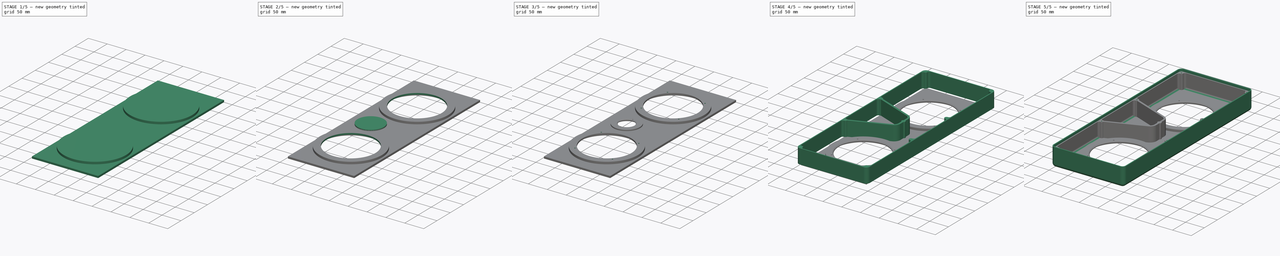
[diagram: build sequence overview — one tinted view per stage of 5, left to right]
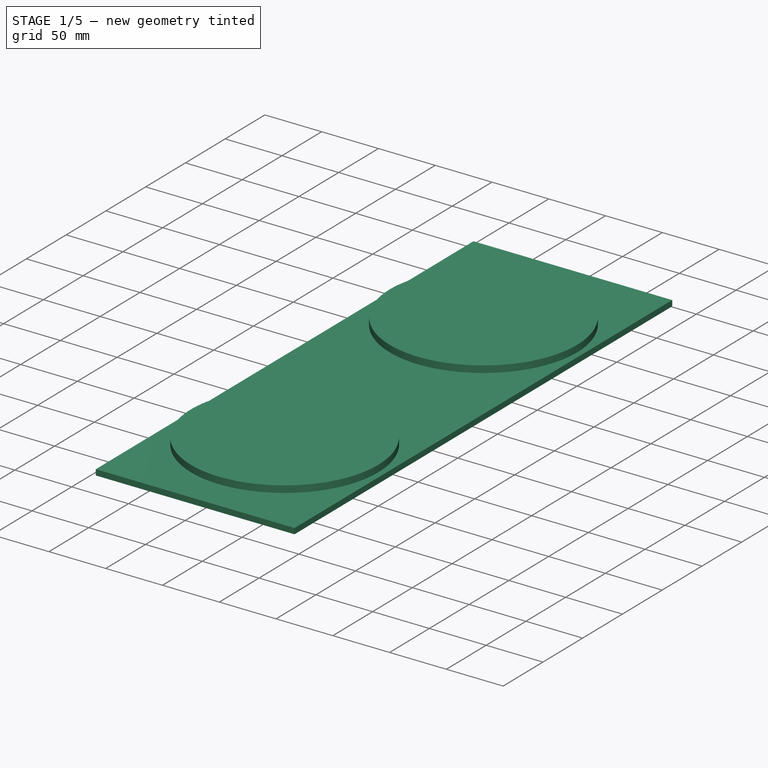
[diagram: stage 1 of 5 — iso view after this stage's code; geometry added in this stage tinted green]
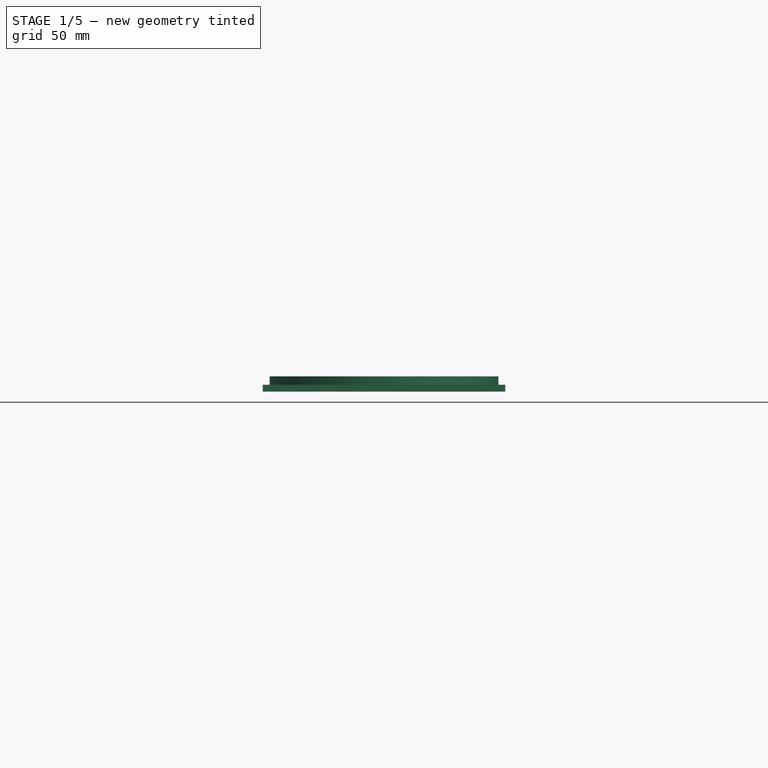
[diagram: stage 1 of 5 — front view after this stage's code; geometry added in this stage tinted green]
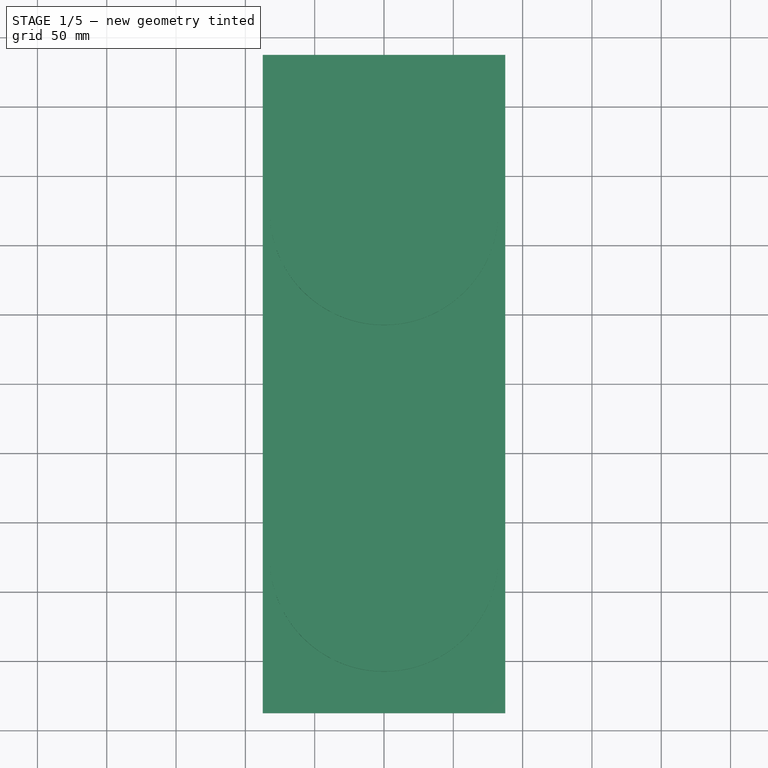
[diagram: stage 1 of 5 — top view after this stage's code; geometry added in this stage tinted green]
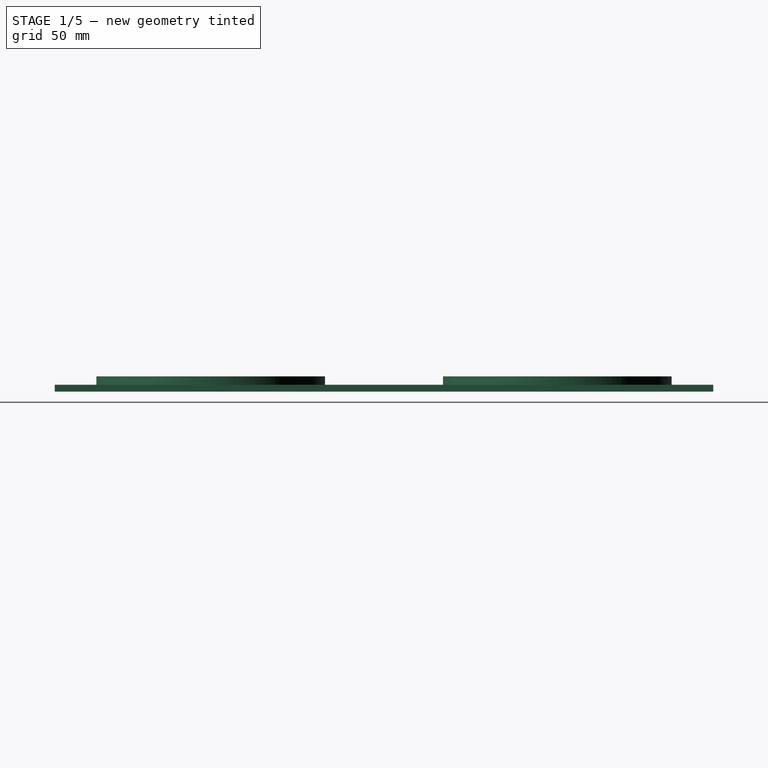
[diagram: stage 1 of 5 — right view after this stage's code; geometry added in this stage tinted green]
FCSTD DOCUMENT  (FreeCAD 1.1R20260325 (Git shallow))
Label: wallspeakers prototype v7.1
License: All rights reserved
LicenseURL: http://en.wikipedia.org/wiki/All_rights_reserved
objects: Sketcher::SketchObject×17, App::Point×5, PartDesign::Pad×5, PartDesign::Pocket×5, PartDesign::Body×4, PartDesign::Hole×3, PartDesign::Chamfer×2, App::VarSet×1, PartDesign::AdditivePipe×1, Part::Feature×1, App::Part×1
note: 87 computed .brp shape members not serialized (recipe doc carries the construction recipe); baked Part::Feature solids carry a one-line shape summary decoded from their .brp

FEATURE [App::Point] Origin005  label="Origin006"
  Role = Origin
FEATURE [Sketcher::SketchObject] Sketch022  label="front face outline"
  ArcFitTolerance = 1e-06
  AttachmentSupport = -> [Origin004]
  ExternalTypes = [0]
  FullyConstrained = true
  MakeInternals = false
  MapMode = 5
  _ExternalGeoVersion = 1
  expr: Constraints[10] = <<v>>.ext_width - <<v>>.ext_roundover * 2
  expr: Constraints[11] = <<v>>.ext_height - <<v>>.ext_roundover * 2
  sketch-geometry (5):
    g0: LineSegment StartX=-87.5 StartY=-237.5 StartZ=0 EndX=87.5 EndY=-237.5 EndZ=0
    g1: LineSegment StartX=87.5 StartY=-237.5 StartZ=0 EndX=87.5 EndY=237.5 EndZ=0
    g2: LineSegment StartX=87.5 StartY=237.5 StartZ=0 EndX=-87.5 EndY=237.5 EndZ=0
    g3: LineSegment StartX=-87.5 StartY=237.5 StartZ=0 EndX=-87.5 EndY=-237.5 EndZ=0
    g4: GeomPoint [constr] X=0 Y=5e-16 Z=0
  constraints (12):
    c: Coincident(g0,g1)
    c: Coincident(g1,g2)
    c: Coincident(g2,g3)
    c: Coincident(g3,g0)
    c: Horizontal(g0)
    c: Horizontal(g2)
    c: Vertical(g1)
    c: Vertical(g3)
    c: Symmetric(g2,g0,g4)
    c: Coincident(g4,g-1)
    c: DistanceX(g2,g2) = 175
    c: DistanceY(g1,g1) = 475
FEATURE [PartDesign::Pad] Pad  label="front face pad"
  Direction = (0,0,1)
  Length = 5
  Length2 = 10
  Profile = -> Sketch022
  ReferenceAxis = -> Sketch022 [N_Axis]
  SideType = 0
  Suppressed = false
  Type = 0
  Type2 = 0
  expr: Length = <<v>>.ext_wall
FEATURE [Sketcher::SketchObject] Sketch005  label="woofer rebates"
  ArcFitTolerance = 1e-06
  AttachmentSupport = -> [Origin]
  ExternalTypes = [0]
  FullyConstrained = true
  MakeInternals = false
  MapMode = 5
  _ExternalGeoVersion = 0
  expr: Constraints[12] = VarSet001.woofer_rebate_dia
  expr: Constraints[3] = Sketch002.Constraints[3]
  expr: Constraints[4] = Sketch002.Constraints[4]
  expr: Constraints[5] = Sketch002.Constraints[5]
  expr: Constraints[6] = Sketch002.Constraints[6]
  expr: Constraints[7] = Sketch002.Constraints[7]
  sketch-geometry (9):
    g0: GeomPoint [constr] X=-97.5 Y=247.5 Z=0
    g1: GeomPoint [constr] X=97.5 Y=247.5 Z=0
    g2: GeomPoint [constr] X=97.5 Y=-247.5 Z=0
    g3: GeomPoint [constr] X=-97.5 Y=-247.5 Z=0
    g4: GeomPoint [constr] X=-35 Y=0 Z=0
    g5: GeomPoint [constr] X=0 Y=125 Z=0
    g6: GeomPoint [constr] X=0 Y=-125 Z=0
    g7: Circle CenterX=0 CenterY=125 CenterZ=0 NormalX=0 NormalY=0 NormalZ=1 AngleXU=0 Radius=76.25
    g8: Circle CenterX=0 CenterY=-125 CenterZ=0 NormalX=0 NormalY=0 NormalZ=1 AngleXU=0 Radius=76.25
  constraints (15):
    c: PointOnObject(g4,g-1)
    c: PointOnObject(g5,g-2)
    c: PointOnObject(g6,g-2)
    c: DistanceX(g4,g-1) = 35
    c: DistanceY(g-1,g5) = 125
    c: DistanceY(g6,g-1) = 125
    c: DistanceY(g-1,g1) = 247.5
    c: DistanceX(g-1,g1) = 97.5
    c: Symmetric(g0,g1,g-2)
    c: Symmetric(g1,g2,g-1)
    c: Symmetric(g3,g2,g-2)
    c: Coincident(g8,g6)
    c: Diameter(g7) = 152.5
    c: Equal(g7,g8)
    c: Coincident(g5,g7)
FEATURE [Sketcher::SketchObject] Sketch024  label="woofer support layout"
  ArcFitTolerance = 1e-06
  AttachmentOffset = pos=(0,0,5) rot=(0,0,1;0rad)
  ExternalTypes = [0]
  FullyConstrained = true
  MakeInternals = false
  MapMode = 2
  Placement = pos=(0,0,5) rot=(0,0,1;0rad)
  _ExternalGeoVersion = 0
  expr: .AttachmentOffset.Base.z = <<v>>.ext_wall
  expr: .Placement.Base.z = <<v>>.ext_wall
  expr: Constraints[14] = Sketch002.Constraints[3]
  expr: Constraints[15] = Sketch002.Constraints[4]
  expr: Constraints[16] = Sketch002.Constraints[5]
  expr: Constraints[17] = Sketch002.Constraints[6]
  expr: Constraints[18] = Sketch002.Constraints[7]
  expr: Constraints[22] = VarSet001.woofer_support_dia
  expr: Constraints[3] = Sketch002.Constraints[3]
  expr: Constraints[4] = Sketch002.Constraints[4]
  expr: Constraints[5] = Sketch002.Constraints[5]
  expr: Constraints[6] = Sketch002.Constraints[6]
  expr: Constraints[7] = Sketch002.Constraints[7]
  sketch-geometry (16):
    g0: GeomPoint [constr] X=-97.5 Y=247.5 Z=0
    g1: GeomPoint [constr] X=97.5 Y=247.5 Z=0
    g2: GeomPoint [constr] X=97.5 Y=-247.5 Z=0
    g3: GeomPoint [constr] X=-97.5 Y=-247.5 Z=0
    g4: GeomPoint [constr] X=-35 Y=0 Z=0
    g5: GeomPoint [constr] X=0 Y=125 Z=0
    g6: GeomPoint [constr] X=0 Y=-125 Z=0
    g7: GeomPoint [constr] X=-97.5 Y=247.5 Z=0
    g8: GeomPoint [constr] X=97.5 Y=247.5 Z=0
    g9: GeomPoint [constr] X=97.5 Y=-247.5 Z=0
    g10: GeomPoint [constr] X=-97.5 Y=-247.5 Z=0
    g11: GeomPoint [constr] X=-35 Y=0 Z=0
    g12: GeomPoint [constr] X=0 Y=125 Z=0
    g13: GeomPoint [constr] X=0 Y=-125 Z=0
    g14: Circle CenterX=0 CenterY=125 CenterZ=0 NormalX=0 NormalY=0 NormalZ=1 AngleXU=0 Radius=82.5
    g15: Circle CenterX=0 CenterY=-125 CenterZ=0 NormalX=0 NormalY=0 NormalZ=1 AngleXU=0 Radius=82.5
  constraints (26):
    c: PointOnObject(g4,g-1)
    c: PointOnObject(g5,g-2)
    c: PointOnObject(g6,g-2)
    c: DistanceX(g4,g-1) = 35
    c: DistanceY(g-1,g5) = 125
    c: DistanceY(g6,g-1) = 125
    c: DistanceY(g-1,g1) = 247.5
    c: DistanceX(g-1,g1) = 97.5
    c: Symmetric(g0,g1,g-2)
    c: Symmetric(g1,g2,g-1)
    c: Symmetric(g3,g2,g-2)
    c: PointOnObject(g11,g-1)
    c: PointOnObject(g12,g-2)
    c: PointOnObject(g13,g-2)
    c: DistanceX(g11,g-1) = 35
    c: DistanceY(g-1,g12) = 125
    c: DistanceY(g13,g-1) = 125
    c: DistanceY(g-1,g8) = 247.5
    c: DistanceX(g-1,g8) = 97.5
    c: Symmetric(g7,g8,g-2)
    c: Symmetric(g8,g9,g-1)
    c: Symmetric(g10,g9,g-2)
    c: Diameter(g14) = 165
    c: Coincident(g15,g6)
    c: Equal(g14,g15)
    c: Coincident(g14,g5)
FEATURE [PartDesign::Pad] Pad002  label="woofer support pad"
  BaseFeature = -> Pad
  Direction = (0,0,1)
  Length = 6
  Length2 = 10
  Profile = -> Sketch024
  ReferenceAxis = -> Sketch024 [N_Axis]
  SideType = 0
  Suppressed = false
  Type = 0
  Type2 = 0
  expr: Length = <<v>>.woofer_support_thickness
FEATURE [PartDesign::Pocket] Pocket  label="woofer rebate pocket"
  BaseFeature = -> Pad002
  Direction = (0,0,-1)
  Length = 7.2
  Length2 = 5
  Profile = -> Sketch005
  ReferenceAxis = -> Sketch005 [N_Axis]
  Reversed = true
  SideType = 0
  Suppressed = false
  Type = 0
  Type2 = 0
  expr: Length = <<v>>.woofer_rebate_depth
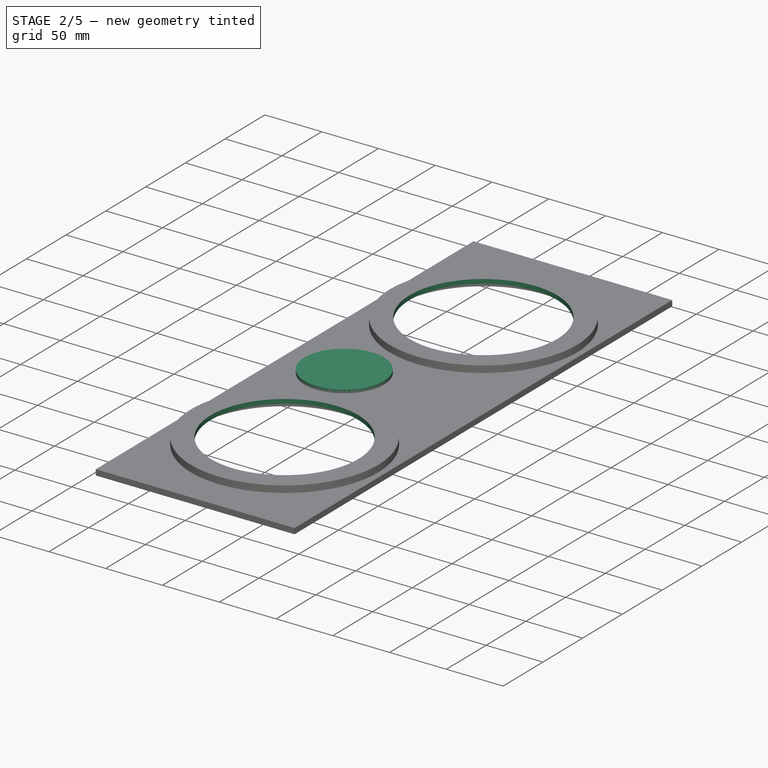
[diagram: stage 2 of 5 — iso view after this stage's code; geometry added in this stage tinted green]
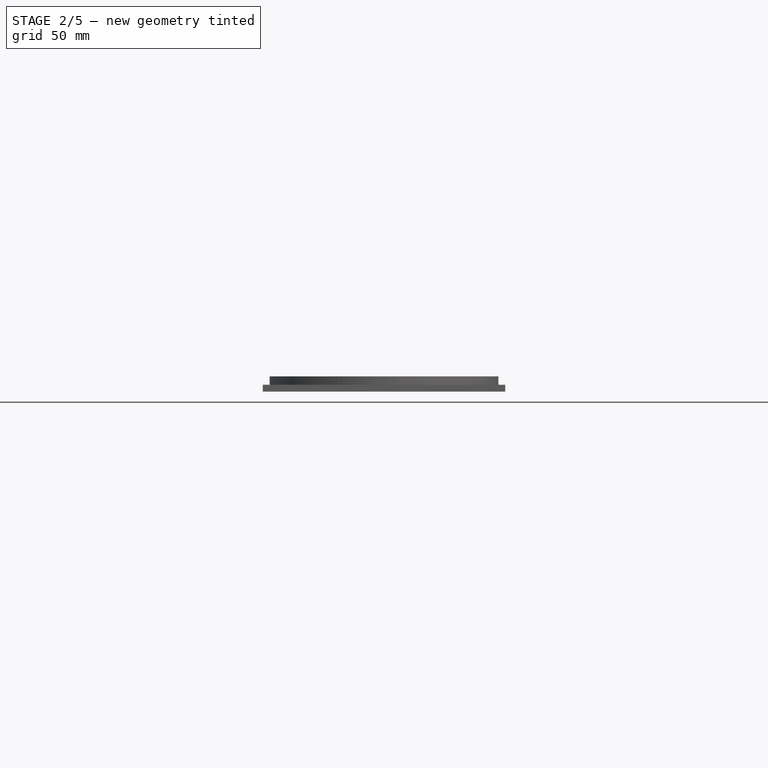
[diagram: stage 2 of 5 — front view after this stage's code; geometry added in this stage tinted green]
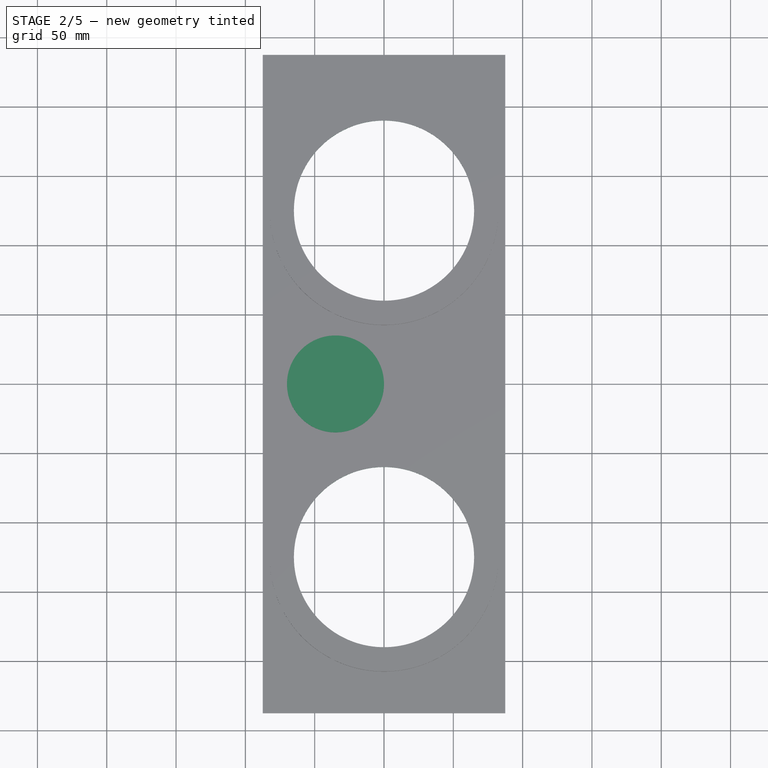
[diagram: stage 2 of 5 — top view after this stage's code; geometry added in this stage tinted green]
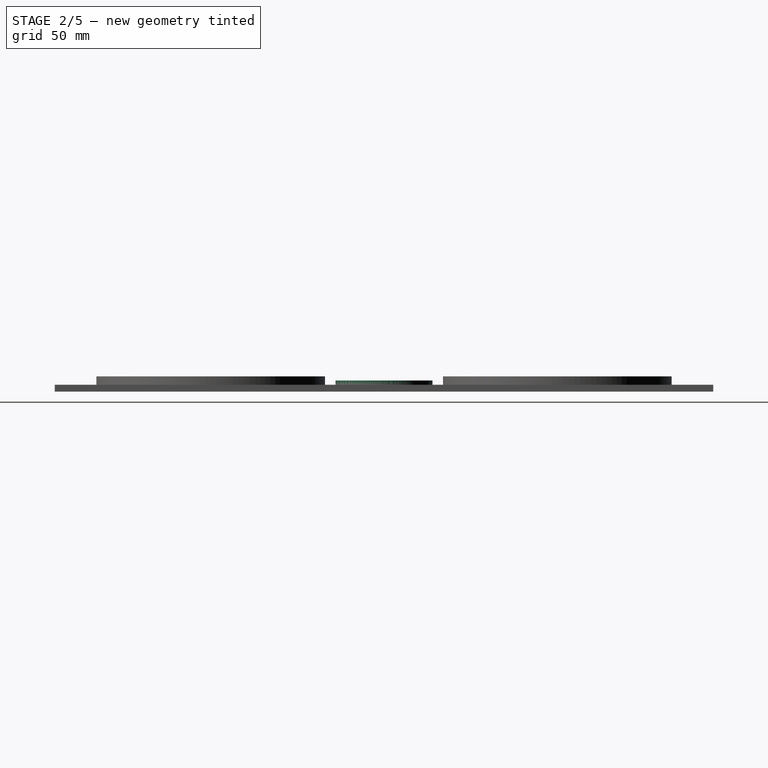
[diagram: stage 2 of 5 — right view after this stage's code; geometry added in this stage tinted green]
FEATURE [Sketcher::SketchObject] Sketch007  label="woofer holes layout"
  ArcFitTolerance = 1e-06
  AttachmentSupport = -> [Origin]
  ExternalTypes = [0]
  FullyConstrained = true
  MakeInternals = false
  MapMode = 5
  _ExternalGeoVersion = 0
  expr: Constraints[12] = VarSet001.woofer_cutout_dia
  expr: Constraints[3] = Sketch002.Constraints[3]
  expr: Constraints[4] = Sketch002.Constraints[4]
  expr: Constraints[5] = Sketch002.Constraints[5]
  expr: Constraints[6] = Sketch002.Constraints[6]
  expr: Constraints[7] = Sketch002.Constraints[7]
  sketch-geometry (9):
    g0: GeomPoint [constr] X=-97.5 Y=247.5 Z=0
    g1: GeomPoint [constr] X=97.5 Y=247.5 Z=0
    g2: GeomPoint [constr] X=97.5 Y=-247.5 Z=0
    g3: GeomPoint [constr] X=-97.5 Y=-247.5 Z=0
    g4: GeomPoint [constr] X=-35 Y=0 Z=0
    g5: GeomPoint [constr] X=0 Y=125 Z=0
    g6: GeomPoint [constr] X=0 Y=-125 Z=0
    g7: Circle CenterX=0 CenterY=125 CenterZ=0 NormalX=0 NormalY=0 NormalZ=1 AngleXU=0 Radius=65
    g8: Circle CenterX=0 CenterY=-125 CenterZ=0 NormalX=0 NormalY=0 NormalZ=1 AngleXU=0 Radius=65
  constraints (15):
    c: PointOnObject(g4,g-1)
    c: PointOnObject(g5,g-2)
    c: PointOnObject(g6,g-2)
    c: DistanceX(g4,g-1) = 35
    c: DistanceY(g-1,g5) = 125
    c: DistanceY(g6,g-1) = 125
    c: DistanceY(g-1,g1) = 247.5
    c: DistanceX(g-1,g1) = 97.5
    c: Symmetric(g0,g1,g-2)
    c: Symmetric(g1,g2,g-1)
    c: Symmetric(g3,g2,g-2)
    c: Coincident(g7,g5)
    c: Diameter(g7) = 130
    c: Equal(g7,g8)
    c: Coincident(g8,g6)
FEATURE [PartDesign::Pocket] Pocket001  label="woofer holes pocket"
  BaseFeature = -> Pocket
  Direction = (0,0,-1)
  Length = 20
  Length2 = 5
  Profile = -> Sketch007
  ReferenceAxis = -> Sketch007 [N_Axis]
  Reversed = true
  SideType = 0
  Suppressed = false
  Type = 0
  Type2 = 0
FEATURE [Sketcher::SketchObject] Sketch009  label="bmr_support"
  ArcFitTolerance = 1e-06
  AttachmentOffset = pos=(0,0,5) rot=(0,0,1;0rad)
  ExternalTypes = [0]
  FullyConstrained = true
  MakeInternals = false
  MapMode = 2
  Placement = pos=(0,0,5) rot=(0,0,1;0rad)
  _ExternalGeoVersion = 0
  expr: .AttachmentOffset.Base.z = <<v>>.ext_wall
  expr: .Placement.Base.z = <<v>>.ext_wall
  expr: Constraints[12] = VarSet001.bmr_support_dia
  expr: Constraints[3] = Sketch002.Constraints[3]
  expr: Constraints[4] = Sketch002.Constraints[4]
  expr: Constraints[5] = Sketch002.Constraints[5]
  expr: Constraints[6] = Sketch002.Constraints[6]
  expr: Constraints[7] = Sketch002.Constraints[7]
  sketch-geometry (8):
    g0: GeomPoint [constr] X=-97.5 Y=247.5 Z=0
    g1: GeomPoint [constr] X=97.5 Y=247.5 Z=0
    g2: GeomPoint [constr] X=97.5 Y=-247.5 Z=0
    g3: GeomPoint [constr] X=-97.5 Y=-247.5 Z=0
    g4: GeomPoint [constr] X=-35 Y=0 Z=0
    g5: GeomPoint [constr] X=0 Y=125 Z=0
    g6: GeomPoint [constr] X=0 Y=-125 Z=0
    g7: Circle CenterX=-35 CenterY=0 CenterZ=0 NormalX=0 NormalY=0 NormalZ=1 AngleXU=0 Radius=35
  constraints (13):
    c: PointOnObject(g4,g-1)
    c: PointOnObject(g5,g-2)
    c: PointOnObject(g6,g-2)
    c: DistanceX(g4,g-1) = 35
    c: DistanceY(g-1,g5) = 125
    c: DistanceY(g6,g-1) = 125
    c: DistanceY(g-1,g1) = 247.5
    c: DistanceX(g-1,g1) = 97.5
    c: Symmetric(g0,g1,g-2)
    c: Symmetric(g1,g2,g-1)
    c: Symmetric(g3,g2,g-2)
    c: Coincident(g7,g4)
    c: Diameter(g7) = 70
FEATURE [Sketcher::SketchObject] Sketch008  label="bmr rebate"
  ArcFitTolerance = 1e-06
  AttachmentSupport = -> [Origin]
  ExternalTypes = [0]
  FullyConstrained = true
  MakeInternals = false
  MapMode = 5
  _ExternalGeoVersion = 0
  expr: Constraints[11] = VarSet001.bmr_rebate_dia
  expr: Constraints[3] = <<v>>.bmr_offset
  expr: Constraints[4] = Sketch002.Constraints[4]
  expr: Constraints[5] = Sketch002.Constraints[5]
  expr: Constraints[6] = Sketch002.Constraints[6]
  expr: Constraints[7] = Sketch002.Constraints[7]
  sketch-geometry (8):
    g0: GeomPoint [constr] X=-97.5 Y=247.5 Z=0
    g1: GeomPoint [constr] X=97.5 Y=247.5 Z=0
    g2: GeomPoint [constr] X=97.5 Y=-247.5 Z=0
    g3: GeomPoint [constr] X=-97.5 Y=-247.5 Z=0
    g4: GeomPoint [constr] X=-35 Y=0 Z=0
    g5: GeomPoint [constr] X=0 Y=125 Z=0
    g6: GeomPoint [constr] X=0 Y=-125 Z=0
    g7: Circle CenterX=-35 CenterY=0 CenterZ=0 NormalX=0 NormalY=0 NormalZ=1 AngleXU=0 Radius=27
  constraints (13):
    c: PointOnObject(g4,g-1)
    c: PointOnObject(g5,g-2)
    c: PointOnObject(g6,g-2)
    c: DistanceX(g4,g-1) = 35
    c: DistanceY(g-1,g5) = 125
    c: DistanceY(g6,g-1) = 125
    c: DistanceY(g-1,g1) = 247.5
    c: DistanceX(g-1,g1) = 97.5
    c: Symmetric(g0,g1,g-2)
    c: Symmetric(g1,g2,g-1)
    c: Symmetric(g3,g2,g-2)
    c: Diameter(g7) = 54
    c: Coincident(g7,g4)
FEATURE [Sketcher::SketchObject] Sketch010  label="bmr holes"
  ArcFitTolerance = 1e-06
  AttachmentSupport = -> [Origin]
  ExternalTypes = [0]
  FullyConstrained = true
  MakeInternals = false
  MapMode = 5
  _ExternalGeoVersion = 0
  expr: Constraints[12] = <<v>>.bmr_hole_dia
  expr: Constraints[3] = <<v>>.bmr_offset
  expr: Constraints[4] = Sketch002.Constraints[4]
  expr: Constraints[5] = Sketch002.Constraints[5]
  expr: Constraints[6] = Sketch002.Constraints[6]
  expr: Constraints[7] = Sketch002.Constraints[7]
  sketch-geometry (8):
    g0: GeomPoint [constr] X=-97.5 Y=247.5 Z=0
    g1: GeomPoint [constr] X=97.5 Y=247.5 Z=0
    g2: GeomPoint [constr] X=97.5 Y=-247.5 Z=0
    g3: GeomPoint [constr] X=-97.5 Y=-247.5 Z=0
    g4: GeomPoint [constr] X=-35 Y=0 Z=0
    g5: GeomPoint [constr] X=0 Y=125 Z=0
    g6: GeomPoint [constr] X=0 Y=-125 Z=0
    g7: Circle CenterX=-35 CenterY=0 CenterZ=0 NormalX=0 NormalY=0 NormalZ=1 AngleXU=0 Radius=19.75
  constraints (13):
    c: PointOnObject(g4,g-1)
    c: PointOnObject(g5,g-2)
    c: PointOnObject(g6,g-2)
    c: DistanceX(g4,g-1) = 35
    c: DistanceY(g-1,g5) = 125
    c: DistanceY(g6,g-1) = 125
    c: DistanceY(g-1,g1) = 247.5
    c: DistanceX(g-1,g1) = 97.5
    c: Symmetric(g0,g1,g-2)
    c: Symmetric(g1,g2,g-1)
    c: Symmetric(g3,g2,g-2)
    c: Coincident(g7,g4)
    c: Diameter(g7) = 39.5
FEATURE [PartDesign::Pad] Pad003  label="bmr support pad"
  BaseFeature = -> Pocket001
  Direction = (0,0,1)
  Length = 3
  Length2 = 10
  Profile = -> Sketch009
  ReferenceAxis = -> Sketch009 [N_Axis]
  SideType = 0
  Suppressed = false
  Type = 0
  Type2 = 0
  expr: Length = <<v>>.bmr_support_thickness
FEATURE [PartDesign::Pocket] Pocket002  label="bmr rebate pocket"
  BaseFeature = -> Pad003
  Direction = (0,0,-1)
  Length = 5.4
  Length2 = 5
  Profile = -> Sketch008
  ReferenceAxis = -> Sketch008 [N_Axis]
  Reversed = true
  SideType = 0
  Suppressed = false
  Type = 0
  Type2 = 0
  expr: Length = <<v>>.bmr_rebate_depth
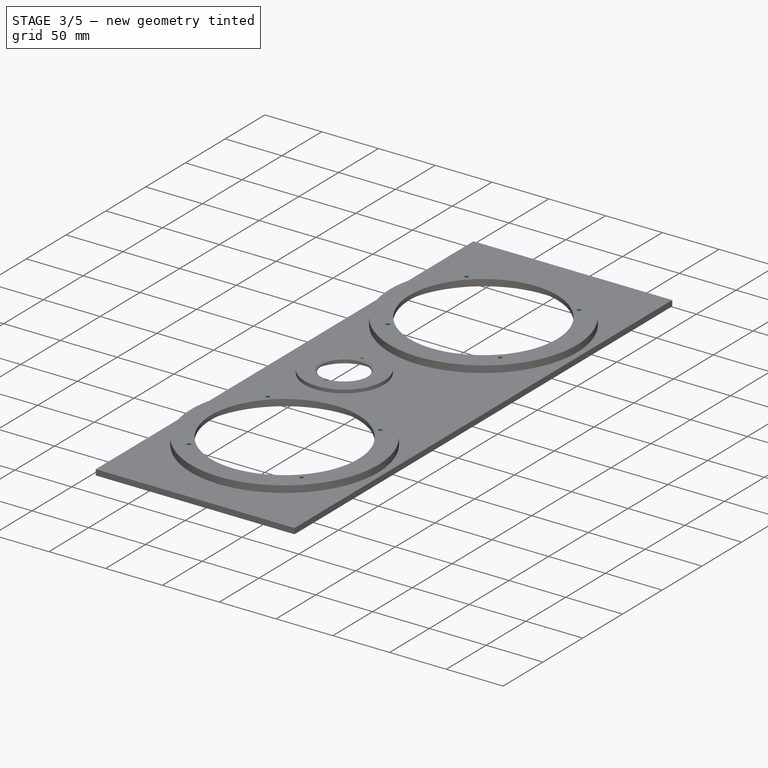
[diagram: stage 3 of 5 — iso view after this stage's code; geometry added in this stage tinted green]
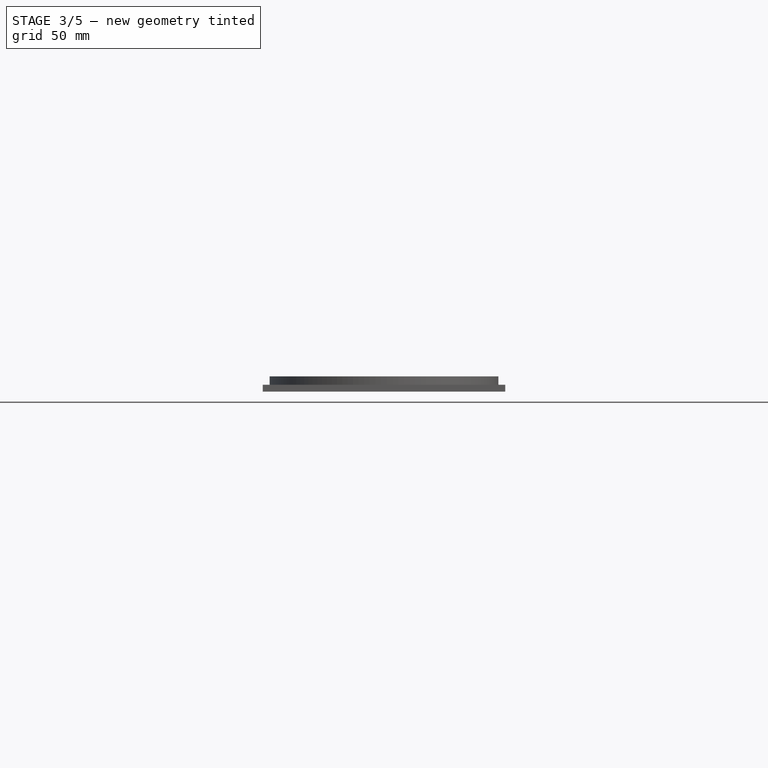
[diagram: stage 3 of 5 — front view after this stage's code; geometry added in this stage tinted green]
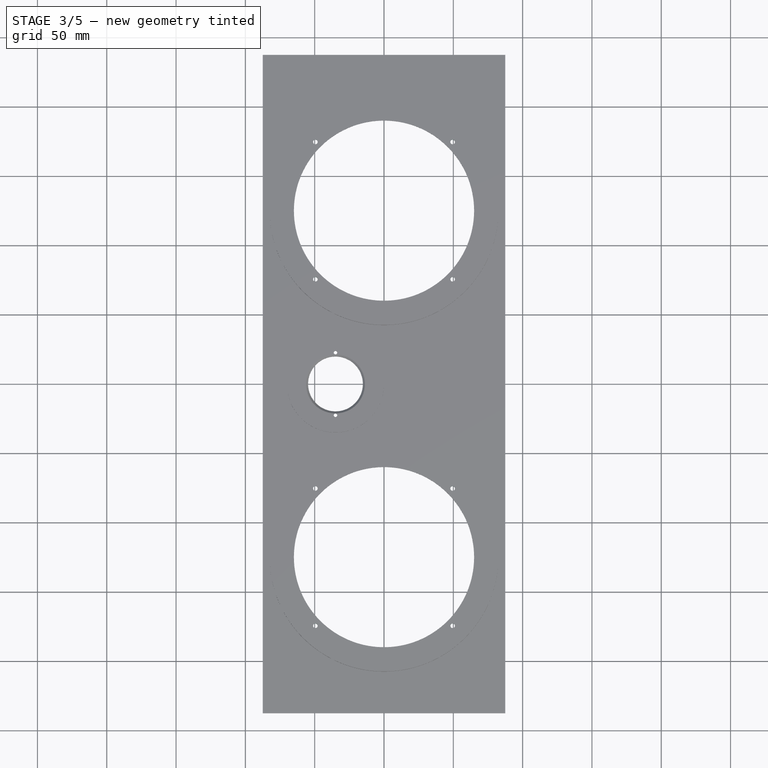
[diagram: stage 3 of 5 — top view after this stage's code; geometry added in this stage tinted green]
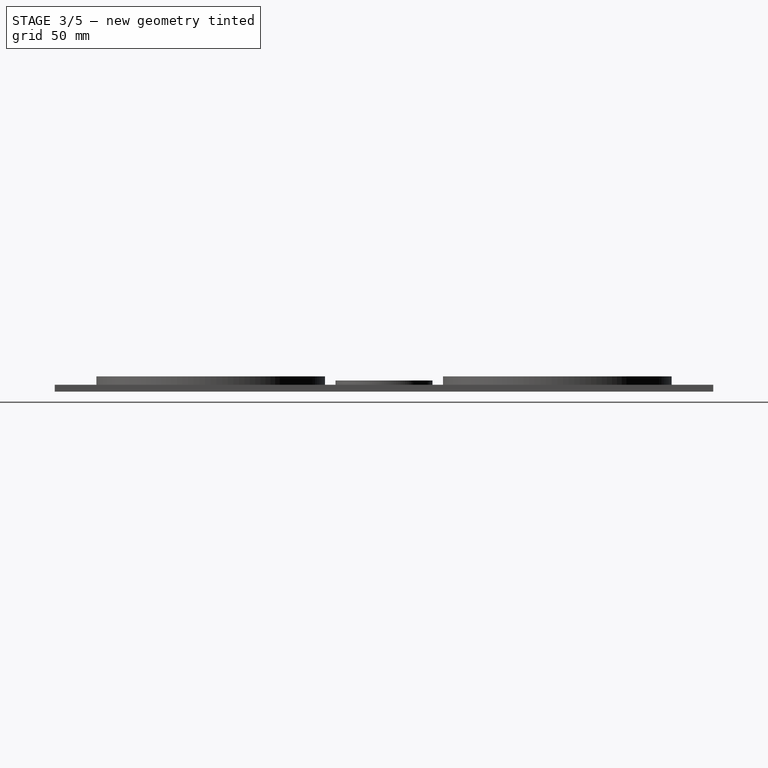
[diagram: stage 3 of 5 — right view after this stage's code; geometry added in this stage tinted green]
FEATURE [PartDesign::Pocket] Pocket003  label="bmr hole pocket"
  BaseFeature = -> Pocket002
  Direction = (0,0,-1)
  Length = 20
  Length2 = 5
  Profile = -> Sketch010
  ReferenceAxis = -> Sketch010 [N_Axis]
  Reversed = true
  SideType = 0
  Suppressed = false
  Type = 0
  Type2 = 0
FEATURE [PartDesign::Body] Body  label="walls"
  AllowCompound = false
  Group = -> [Sketch002,Sketch,Sketch003,Sketch021,AdditivePipe,Sketch014,Pocket004]
  Origin = -> Origin002
  Tip = -> Pocket004
FEATURE [Sketcher::SketchObject] Sketch012  label="bmr screw hole layout"
  ArcFitTolerance = 1e-06
  AttachmentOffset = pos=(0,0,5.4) rot=(0,0,1;0rad)
  AttachmentSupport = -> [Origin]
  ExternalTypes = [0]
  FullyConstrained = true
  MakeInternals = false
  MapMode = 5
  Placement = pos=(0,0,5.4) rot=(0,0,1;0rad)
  _ExternalGeoVersion = 0
  expr: .AttachmentOffset.Base.z = <<v>>.bmr_rebate_depth
  expr: Constraints[2] = <<v>>.bmr_offset
  sketch-geometry (2):
    g0: GeomPoint X=-35 Y=22.6 Z=0
    g1: GeomPoint X=-35 Y=-22.6 Z=0
  constraints (3):
    c: Symmetric(g0,g1,g-1)
    c: DistanceY(g1,g0) = 45.2
    c: Distance(g0,g-2) = 35
FEATURE [Sketcher::SketchObject] Sketch013  label="post screw hole layout"
  ArcFitTolerance = 1e-06
  AttachmentOffset = pos=(0,0,44.1) rot=(0,0,1;0rad)
  AttachmentSupport = -> [Origin]
  ExternalTypes = [0]
  FullyConstrained = true
  MakeInternals = false
  MapMode = 5
  Placement = pos=(0,0,44.1) rot=(0,0,1;0rad)
  _ExternalGeoVersion = 0
  expr: .AttachmentOffset.Base.z = <<v>>.int_depth + <<v>>.ext_wall
  expr: Constraints[11] = Sketch.Constraints[11]
  expr: Constraints[1] = Sketch.Constraints[1]
  expr: Constraints[2] = Sketch.Constraints[2]
  expr: Constraints[8] = Sketch.Constraints[8]
  expr: Constraints[9] = Sketch.Constraints[9]
  sketch-geometry (9):
    g0: GeomPoint X=-87.5 Y=237.5 Z=0
    g1: GeomPoint X=87.5 Y=237.5 Z=0
    g2: GeomPoint X=87.5 Y=-237.5 Z=0
    g3: GeomPoint X=-87.5 Y=-237.5 Z=0
    g4: GeomPoint X=-87.5 Y=-67.5 Z=0
    g5: GeomPoint X=-87.5 Y=67.5 Z=0
    g6: GeomPoint X=87.5 Y=67.5 Z=0
    g7: GeomPoint X=87.5 Y=-67.5 Z=0
    g8: GeomPoint X=20 Y=0 Z=0
  constraints (12):
    c: PointOnObject(g8,g-1)
    c: DistanceY(g-1,g0) = 237.5
    c: DistanceX(g0,g-1) = 87.5
    c: Symmetric(g0,g1,g-2)
    c: Symmetric(g5,g6,g-2)
    c: Symmetric(g4,g7,g-2)
    c: Symmetric(g3,g2,g-2)
    c: Symmetric(g2,g1,g-1)
    c: DistanceX(g5,g-1) = 87.5
    c: DistanceY(g4,g5) = 135
    c: Symmetric(g5,g4,g-1)
    c: DistanceX(g-1,g8) = 20
FEATURE [Sketcher::SketchObject] Sketch011  label="woofer screw hole layout"
  ArcFitTolerance = 1e-06
  AttachmentOffset = pos=(0,0,7.2) rot=(0,0,1;0rad)
  AttachmentSupport = -> [Origin]
  ExternalTypes = [0]
  FullyConstrained = true
  MakeInternals = false
  MapMode = 5
  Placement = pos=(0,0,7.2) rot=(0,0,1;0rad)
  _ExternalGeoVersion = 0
  expr: .AttachmentOffset.Base.z = <<v>>.woofer_rebate_depth
  expr: Constraints[4] = <<v>>.woofer_offset
  expr: Constraints[5] = <<v>>.woofer_offset
  sketch-geometry (10):
    g0: GeomPoint X=-49.53 Y=174.53 Z=0
    g1: GeomPoint X=49.53 Y=174.53 Z=0
    g2: GeomPoint X=49.53 Y=75.47 Z=0
    g3: GeomPoint X=-49.53 Y=75.47 Z=0
    g4: GeomPoint X=49.53 Y=-75.47 Z=0
    g5: GeomPoint X=-49.53 Y=-75.47 Z=0
    g6: GeomPoint X=-49.53 Y=-174.53 Z=0
    g7: GeomPoint X=49.53 Y=-174.53 Z=0
    g8: LineSegment [constr] StartX=100 StartY=-125 StartZ=0 EndX=-100 EndY=-125 EndZ=0
    g9: LineSegment [constr] StartX=100 StartY=125 StartZ=0 EndX=-100 EndY=125 EndZ=0
  constraints (16):
    c: DistanceX(g9,g9) = 200
    c: DistanceX(g8,g8) = 200
    c: Symmetric(g9,g9,g-2)
    c: Symmetric(g8,g8,g-2)
    c: Distance(g-1,g9) = 125
    c: Distance(g-1,g8) = 125
    c: Distance(g1,g9) = 49.53
    c: DistanceX(g-1,g1) = 49.53
    c: Symmetric(g1,g0,g-2)
    c: Symmetric(g0,g3,g9)
    c: Symmetric(g1,g2,g9)
    c: Distance(g4,g8) = 49.53
    c: Distance(g4,g-2) = 49.53
    c: Symmetric(g4,g5,g-2)
    c: Symmetric(g5,g6,g8)
    c: Symmetric(g4,g7,g8)
FEATURE [PartDesign::Hole] Hole  label="bmr screw holes"
  BaseFeature = -> Pocket003
  BaseProfileType = 7
  CustomThreadClearance = 0
  Depth = 10
  DepthType = 0
  Diameter = 2.5
  DrillForDepth = false
  DrillPoint = 1
  DrillPointAngle = 118
  HoleCutCountersinkAngle = 90
  HoleCutCustomValues = false
  HoleCutDepth = 0
  HoleCutDiameter = 0
  HoleCutType = 0
  ModelThread = false
  Profile = -> Sketch012
  Reversed = true
  Suppressed = false
  Tapered = false
  TaperedAngle = 90
  ThreadClass = 0
  ThreadDepth = 10
  ThreadDepthType = 0
  ThreadDiameter = 3
  ThreadDirection = 0
  ThreadFit = 0
  ThreadSize = 9
  ThreadType = 1
  Threaded = true
  UseCustomThreadClearance = false
FEATURE [PartDesign::Hole] Hole001  label="woofer screw holes"
  BaseFeature = -> Hole
  BaseProfileType = 7
  CustomThreadClearance = 0
  Depth = 10
  DepthType = 0
  Diameter = 3.3
  DrillForDepth = false
  DrillPoint = 0
  DrillPointAngle = 118
  HoleCutCountersinkAngle = 90
  HoleCutCustomValues = false
  HoleCutDepth = 0
  HoleCutDiameter = 0
  HoleCutType = 0
  ModelThread = false
  Profile = -> Sketch011
  Reversed = true
  Suppressed = false
  Tapered = false
  TaperedAngle = 90
  ThreadClass = 0
  ThreadDepth = 10
  ThreadDepthType = 0
  ThreadDiameter = 4
  ThreadDirection = 0
  ThreadFit = 0
  ThreadSize = 11
  ThreadType = 1
  Threaded = true
  UseCustomThreadClearance = false
FEATURE [PartDesign::Body] Body003  label="interior baffle"
  AllowCompound = false
  Group = -> [Sketch015,Pad004]
  Origin = -> Origin008
  Tip = -> Pad004
FEATURE [Part::Feature] Part__Feature  label="BMR27C-8A"
  Placement = pos=(-35,0,0) rot=(1,0,0;-1.5708rad)
  shape: bbox 45.25 x 52.45 x 19.51 mm, 553 faces (baked)
  expr: .Placement.Base.x = -<<v>>.bmr_offset
FEATURE [PartDesign::Chamfer] Chamfer
  Angle = 45
  Base = -> Hole001 [Edge50]
  BaseFeature = -> Hole001
  ChamferType = 0
  FlipDirection = false
  Size = 1.5
  Size2 = 1
  SupportTransform = false
  Suppressed = false
  UseAllEdges = false
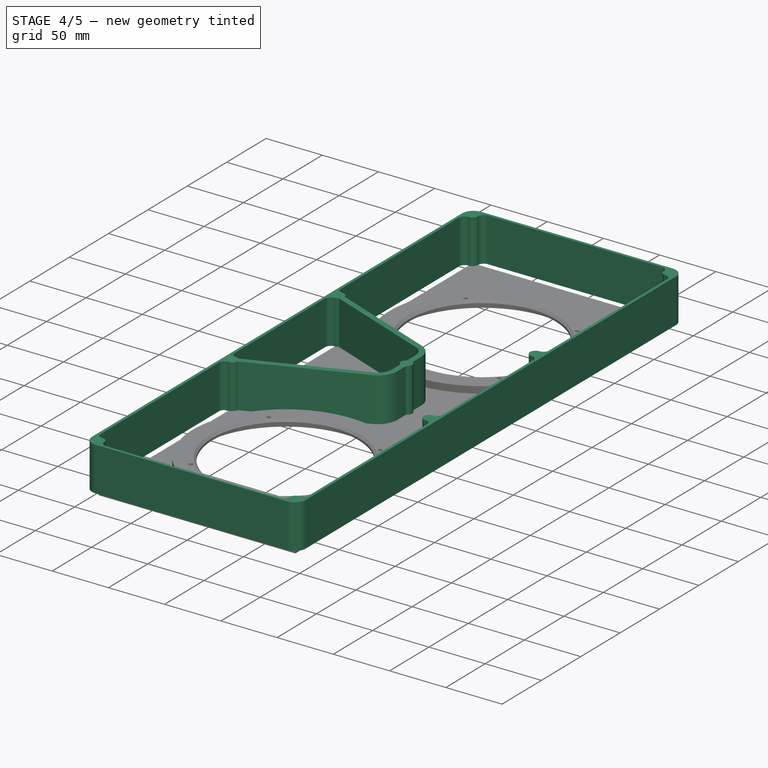
[diagram: stage 4 of 5 — iso view after this stage's code; geometry added in this stage tinted green]
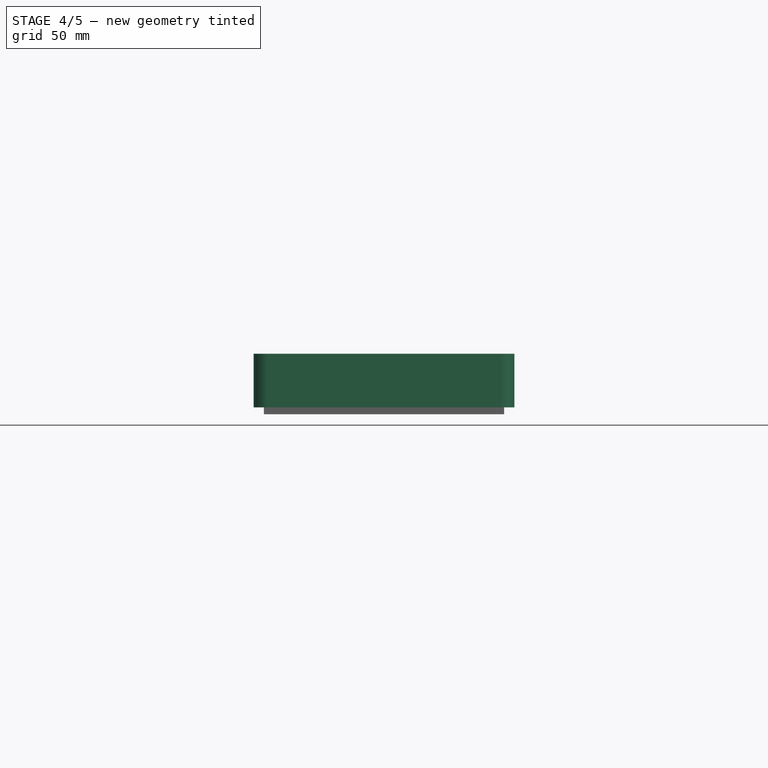
[diagram: stage 4 of 5 — front view after this stage's code; geometry added in this stage tinted green]
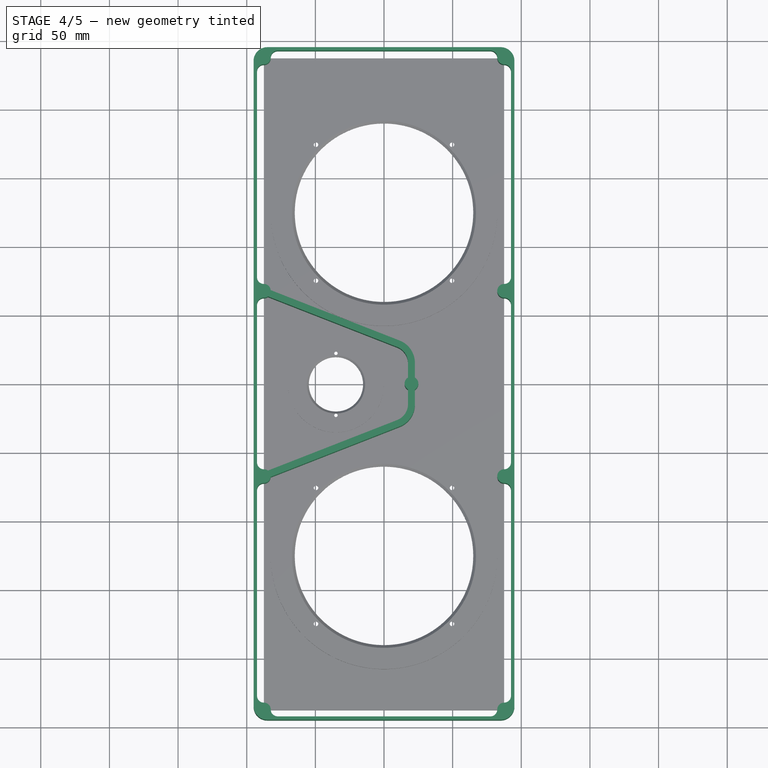
[diagram: stage 4 of 5 — top view after this stage's code; geometry added in this stage tinted green]
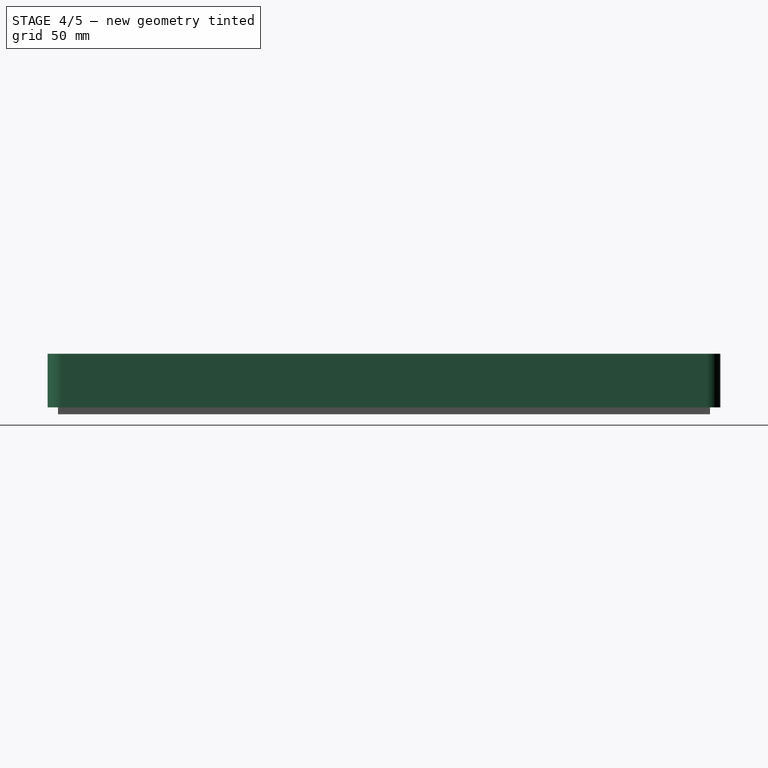
[diagram: stage 4 of 5 — right view after this stage's code; geometry added in this stage tinted green]
FEATURE [App::Point] Origin007  label="Origin009"
  Role = Origin
FEATURE [Sketcher::SketchObject] Sketch004  label="screw posts layout"
  ArcFitTolerance = 1e-06
  ExternalTypes = [0]
  FullyConstrained = false
  MakeInternals = false
  MapMode = 2
  Placement = pos=(0,0,5) rot=(0,0,1;0rad)
  _ExternalGeoVersion = 0
  expr: .Placement.Base.z = <<v>>.ext_wall
  expr: Constraints[117] = <<v>>.screw_post_diameter
  expr: Constraints[11] = Sketch.Constraints[11]
  expr: Constraints[1] = Sketch.Constraints[1]
  expr: Constraints[2] = Sketch.Constraints[2]
  expr: Constraints[81] = <<v>>.ext_height - <<v>>.ext_wall * 2
  expr: Constraints[88] = <<v>>.ext_width - <<v>>.ext_wall * 2
  expr: Constraints[8] = Sketch.Constraints[8]
  expr: Constraints[91] = <<v>>.ext_width - <<v>>.ext_wall * 2
  expr: Constraints[92] = <<v>>.ext_width - <<v>>.ext_wall * 2
  expr: Constraints[9] = Sketch.Constraints[9]
  sketch-geometry (62):
    g0: GeomPoint [constr] X=-87.5 Y=237.5 Z=0
    g1: GeomPoint [constr] X=87.5 Y=237.5 Z=0
    g2: GeomPoint [constr] X=87.5 Y=-237.5 Z=0
    g3: GeomPoint [constr] X=-87.5 Y=-237.5 Z=0
    g4: GeomPoint [constr] X=-87.5 Y=-67.5 Z=0
    g5: GeomPoint [constr] X=-87.5 Y=67.5 Z=0
    g6: GeomPoint [constr] X=87.5 Y=67.5 Z=0
    g7: GeomPoint [constr] X=87.5 Y=-67.5 Z=0
    g8: GeomPoint [constr] X=20 Y=0 Z=0
    g9: LineSegment StartX=-92.5 StartY=-227.5 StartZ=0 EndX=-92.5 EndY=-77.5 EndZ=0
    g10: ArcOfCircle CenterX=-87.5 CenterY=67.5 CenterZ=0 NormalX=0 NormalY=0 NormalZ=1 AngleXU=0 Radius=5 StartAngle=4.71239 EndAngle=7.85398
    g11: ArcOfCircle CenterX=-87.5 CenterY=77.5 CenterZ=0 NormalX=0 NormalY=0 NormalZ=1 AngleXU=0 Radius=5 StartAngle=3.14159 EndAngle=4.71239
    g12: ArcOfCircle CenterX=-87.5 CenterY=57.5 CenterZ=0 NormalX=0 NormalY=0 NormalZ=1 AngleXU=0 Radius=5 StartAngle=1.5708 EndAngle=3.14159
    g13: LineSegment StartX=-92.5 StartY=77.5 StartZ=0 EndX=-92.5 EndY=227.5 EndZ=0
    g14: ArcOfCircle CenterX=-87.5 CenterY=-237.5 CenterZ=0 NormalX=0 NormalY=0 NormalZ=1 AngleXU=0 Radius=5 StartAngle=7.4e-15 EndAngle=1.5708
    g15: ArcOfCircle CenterX=-87.5 CenterY=-227.5 CenterZ=0 NormalX=0 NormalY=0 NormalZ=1 AngleXU=0 Radius=5 StartAngle=3.14159 EndAngle=4.71239
    g16: ArcOfCircle CenterX=-77.5 CenterY=-237.5 CenterZ=0 NormalX=0 NormalY=0 NormalZ=1 AngleXU=0 Radius=5 StartAngle=3.14159 EndAngle=4.71239
    g17: ArcOfCircle CenterX=-87.5 CenterY=-67.5 CenterZ=0 NormalX=0 NormalY=0 NormalZ=1 AngleXU=0 Radius=5 StartAngle=4.71239 EndAngle=7.85398
    g18: ArcOfCircle CenterX=-87.5 CenterY=-57.5 CenterZ=0 NormalX=0 NormalY=0 NormalZ=1 AngleXU=0 Radius=5 StartAngle=3.14159 EndAngle=4.71239
    g19: ArcOfCircle CenterX=-87.5 CenterY=-77.5 CenterZ=0 NormalX=0 NormalY=0 NormalZ=1 AngleXU=0 Radius=5 StartAngle=1.5708 EndAngle=3.14159
    g20: LineSegment StartX=-92.5 StartY=-57.5 StartZ=0 EndX=-92.5 EndY=57.5 EndZ=0
    g21: ArcOfCircle CenterX=-87.5 CenterY=237.5 CenterZ=0 NormalX=0 NormalY=0 NormalZ=1 AngleXU=0 Radius=5 StartAngle=4.71239 EndAngle=6.28319
    g22: ArcOfCircle CenterX=-77.5 CenterY=237.5 CenterZ=0 NormalX=0 NormalY=0 NormalZ=1 AngleXU=0 Radius=5 StartAngle=1.5708 EndAngle=3.14159
    g23: ArcOfCircle CenterX=-87.5 CenterY=227.5 CenterZ=0 NormalX=0 NormalY=0 NormalZ=1 AngleXU=0 Radius=5 StartAngle=1.5708 EndAngle=3.14159
    g24: GeomPoint [constr] X=87.5 Y=237.5 Z=0
    g25: GeomPoint [constr] X=-87.5 Y=237.5 Z=0
    g26: GeomPoint [constr] X=-87.5 Y=-237.5 Z=0
    g27: GeomPoint [constr] X=87.5 Y=-237.5 Z=0
    g28: GeomPoint [constr] X=87.5 Y=-67.5 Z=0
    g29: GeomPoint [constr] X=87.5 Y=67.5 Z=0
    g30: GeomPoint [constr] X=-87.5 Y=67.5 Z=0
    g31: GeomPoint [constr] X=-87.5 Y=-67.5 Z=0
    g32: GeomPoint [constr] X=-20 Y=0 Z=0
    g33: LineSegment StartX=92.5 StartY=-227.5 StartZ=0 EndX=92.5 EndY=-77.5 EndZ=0
    g34: ArcOfCircle CenterX=87.5 CenterY=67.5 CenterZ=0 NormalX=0 NormalY=0 NormalZ=1 AngleXU=0 Radius=5 StartAngle=1.5708 EndAngle=4.71239
    g35: ArcOfCircle CenterX=87.5 CenterY=77.5 CenterZ=0 NormalX=0 NormalY=0 NormalZ=1 AngleXU=0 Radius=5 StartAngle=4.71239 EndAngle=6.28319
    g36: ArcOfCircle CenterX=87.5 CenterY=57.5 CenterZ=0 NormalX=0 NormalY=0 NormalZ=1 AngleXU=0 Radius=5 StartAngle=0 EndAngle=1.5708
    g37: LineSegment StartX=92.5 StartY=77.5 StartZ=0 EndX=92.5 EndY=227.5 EndZ=0
    g38: ArcOfCircle CenterX=87.5 CenterY=-237.5 CenterZ=0 NormalX=0 NormalY=0 NormalZ=1 AngleXU=0 Radius=5 StartAngle=1.5708 EndAngle=3.14159
    g39: ArcOfCircle CenterX=87.5 CenterY=-227.5 CenterZ=0 NormalX=0 NormalY=0 NormalZ=1 AngleXU=0 Radius=5 StartAngle=4.71239 EndAngle=6.28319
    g40: ArcOfCircle CenterX=77.5 CenterY=-237.5 CenterZ=0 NormalX=0 NormalY=0 NormalZ=1 AngleXU=0 Radius=5 StartAngle=4.71239 EndAngle=6.28319
    g41: ArcOfCircle CenterX=87.5 CenterY=-67.5 CenterZ=0 NormalX=0 NormalY=0 NormalZ=1 AngleXU=0 Radius=5 StartAngle=1.5708 EndAngle=4.71239
    g42: ArcOfCircle CenterX=87.5 CenterY=-57.5 CenterZ=0 NormalX=0 NormalY=0 NormalZ=1 AngleXU=0 Radius=5 StartAngle=4.71239 EndAngle=6.28319
    g43: ArcOfCircle CenterX=87.5 CenterY=-77.5 CenterZ=0 NormalX=0 NormalY=0 NormalZ=1 AngleXU=0 Radius=5 StartAngle=-9e-16 EndAngle=1.5708
    g44: LineSegment StartX=92.5 StartY=-57.5 StartZ=0 EndX=92.5 EndY=57.5 EndZ=0
    g45: ArcOfCircle CenterX=87.5 CenterY=237.5 CenterZ=0 NormalX=0 NormalY=0 NormalZ=1 AngleXU=0 Radius=5 StartAngle=3.14159 EndAngle=4.71239
    g46: ArcOfCircle CenterX=77.5 CenterY=237.5 CenterZ=0 NormalX=0 NormalY=0 NormalZ=1 AngleXU=0 Radius=5 StartAngle=-5.3e-15 EndAngle=1.5708
    g47: ArcOfCircle CenterX=87.5 CenterY=227.5 CenterZ=0 NormalX=0 NormalY=0 NormalZ=1 AngleXU=0 Radius=5 StartAngle=0 EndAngle=1.5708
    g48: LineSegment StartX=-77.5 StartY=242.5 StartZ=0 EndX=77.5 EndY=242.5 EndZ=0
    g49: LineSegment StartX=-77.5 StartY=-242.5 StartZ=0 EndX=77.5 EndY=-242.5 EndZ=0
    g50: LineSegment [constr] StartX=-87.5 StartY=232.5 StartZ=0 EndX=-82.5 EndY=237.5 EndZ=0
    g51: LineSegment StartX=-95 StartY=235 StartZ=0 EndX=-95 EndY=-235 EndZ=0
    g52: LineSegment StartX=-85 StartY=-245 StartZ=0 EndX=85 EndY=-245 EndZ=0
    g53: LineSegment StartX=95 StartY=-235 StartZ=0 EndX=95 EndY=235 EndZ=0
    g54: LineSegment StartX=85 StartY=245 StartZ=0 EndX=-85 EndY=245 EndZ=0
    g55: ArcOfCircle CenterX=-85 CenterY=235 CenterZ=0 NormalX=0 NormalY=0 NormalZ=1 AngleXU=0 Radius=10 StartAngle=1.5708 EndAngle=3.14159
    g56: ArcOfCircle CenterX=-85 CenterY=-235 CenterZ=0 NormalX=0 NormalY=0 NormalZ=1 AngleXU=0 Radius=10 StartAngle=3.14159 EndAngle=4.71239
    g57: ArcOfCircle CenterX=85 CenterY=-235 CenterZ=0 NormalX=0 NormalY=0 NormalZ=1 AngleXU=0 Radius=10 StartAngle=4.71239 EndAngle=6.28319
    g58: ArcOfCircle CenterX=85 CenterY=235 CenterZ=0 NormalX=0 NormalY=0 NormalZ=1 AngleXU=0 Radius=10 StartAngle=1.04e-14 EndAngle=1.5708
    g59: GeomPoint [constr] X=-95 Y=245 Z=0
    g60: GeomPoint [constr] X=95 Y=-245 Z=0
    g61: Circle CenterX=20 CenterY=0 CenterZ=0 NormalX=0 NormalY=0 NormalZ=1 AngleXU=0 Radius=5
  constraints (118):
    c: PointOnObject(g8,g-1)
    c: DistanceY(g-1,g0) = 237.5
    c: DistanceX(g0,g-1) = 87.5
    c: Symmetric(g0,g1,g-2)
    c: Symmetric(g5,g6,g-2)
    c: Symmetric(g4,g7,g-2)
    c: Symmetric(g3,g2,g-2)
    c: Symmetric(g2,g1,g-1)
    c: DistanceX(g5,g-1) = 87.5
    c: DistanceY(g4,g5) = 135
    c: Symmetric(g5,g4,g-1)
    c: DistanceX(g-1,g8) = 20
    c: Radius(g10) = 5
    c: Equal(g11,g10)
    c: Equal(g12,g10)
    c: Tangent(g11,g10) = 1.5708
    c: Tangent(g12,g10) = 1.5708
    c: Tangent(g13,g11) = 1.5708
    c: Radius(g14) = 5
    c: Equal(g15,g14)
    c: Equal(g16,g14)
    c: Tangent(g15,g14) = 1.5708
    c: Tangent(g16,g14) = 1.5708
    c: Radius(g17) = 5
    c: Equal(g18,g17)
    c: Equal(g19,g17)
    c: Tangent(g18,g17) = 1.5708
    c: Tangent(g19,g17) = 1.5708
    c: Tangent(g20,g18) = 1.5708
    c: Vertical(g20)
    c: Vertical(g9)
    c: Coincident(g17,g4)
    c: Coincident(g14,g3)
    c: Tangent(g15,g9) = 1.5708
    c: Coincident(g10,g5)
    c: Tangent(g12,g20) = 1.5708
    c: Radius(g21) = 5
    c: Equal(g22,g21)
    c: Equal(g23,g21)
    c: Tangent(g22,g21) = 1.5708
    c: Tangent(g23,g21) = 1.5708
    c: Tangent(g23,g13) = 1.5708
    c: Coincident(g21,g0)
    c: Symmetric(g11,g19,g-1)
    c: Tangent(g9,g19) = 1.5708
    c: Radius(g34) = 5
    c: Equal(g35,g34)
    c: Equal(g36,g34)
    c: Tangent(g35,g34) = 1.5708
    c: Tangent(g36,g34) = 1.5708
    c: Tangent(g37,g35) = -1.5708
    c: Radius(g38) = 5
    c: Equal(g39,g38)
    c: Equal(g40,g38)
    c: Tangent(g39,g38) = 1.5708
    c: Tangent(g40,g38) = 1.5708
    c: Radius(g41) = 5
    c: Equal(g42,g41)
    c: Equal(g43,g41)
    c: Tangent(g42,g41) = 1.5708
    c: Tangent(g43,g41) = 1.5708
    c: Tangent(g44,g42) = -1.5708
    c: Vertical(g33)
    c: Coincident(g41,g28)
    c: Coincident(g38,g27)
    c: Tangent(g39,g33) = -1.5708
    c: Coincident(g34,g29)
    c: Tangent(g36,g44) = -1.5708
    c: Radius(g45) = 5
    c: Equal(g47,g45)
    c: Tangent(g46,g45) = 1.5708
    c: Tangent(g47,g45) = 1.5708
    c: Tangent(g47,g37) = -1.5708
    c: Coincident(g45,g24)
    c: Tangent(g33,g43) = -1.5708
    c: Symmetric(g46,g22,g-2)
    c: Tangent(g48,g46) = 1.5708
    c: Tangent(g48,g22) = 1.5708
    c: Tangent(g49,g16) = -1.5708
    c: Horizontal(g49)
    c: Tangent(g49,g40) = -1.5708
    c: Distance(g49,g48) = 485
    c: Coincident(g28,g7)
    c: Coincident(g29,g6)
    c: Coincident(g24,g1)
    c: Coincident(g27,g2)
    c: Coincident(g50,g21)
    c: Coincident(g50,g21)
    c: Distance(g44,g20) = 185
    c: Symmetric(g13,g37,g-2)
    c: Symmetric(g12,g36,g-2)
    c: DistanceX(g11,g35) = 185
    c: Distance(g33,g9) = 185
    c: Angle(g50) = 0.785398
    c: Tangent(g51,g55) = -1.5708
    c: Tangent(g51,g56) = -1.5708
    c: Tangent(g52,g56) = -1.5708
    c: Tangent(g52,g57) = -1.5708
    c: Tangent(g53,g57) = -1.5708
    c: Tangent(g53,g58) = -1.5708
    c: Tangent(g54,g58) = -1.5708
    c: Tangent(g54,g55) = -1.5708
    c: Vertical(g51)
    c: Horizontal(g52)
    c: Horizontal(g54)
    c: Equal(g55,g56)
    c: Equal(g57,g58)
    c: PointOnObject(g59,g51)
    c: PointOnObject(g59,g54)
    c: PointOnObject(g60,g52)
    c: PointOnObject(g60,g53)
    c: Radius(g55) = 10
    c: Distance(g53,g51) = 190
    c: Symmetric(g51,g53,g-2)
    c: Distance(g52,g54) = 490
    c: Symmetric(g53,g53,g-1)
    c: Coincident(g61,g8)
    c: Diameter(g61) = 10
FEATURE [PartDesign::Pad] Pad001  label="screw posts pad"
  Direction = (0,0,1)
  Length = 39.1
  Length2 = 10
  Placement = pos=(0,0,5) rot=(0,0,1;0rad)
  Profile = -> Sketch004
  ReferenceAxis = -> Sketch004 [N_Axis]
  SideType = 0
  Suppressed = false
  Type = 0
  Type2 = 0
  expr: Length = <<v>>.int_depth
FEATURE [PartDesign::Body] Body002  label="screw posts"
  AllowCompound = true
  Group = -> [Sketch004,Pad001,Sketch013,Hole002]
  Origin = -> Origin006
  Tip = -> Hole002
FEATURE [App::Point] Origin009  label="Origin011"
  Role = Origin
FEATURE [PartDesign::Pad] Pad004  label="interior baffle pad"
  Direction = (0,0,1)
  Length = 39.1
  Length2 = 10
  Profile = -> Sketch015
  ReferenceAxis = -> Sketch015 [N_Axis]
  SideType = 0
  Suppressed = false
  Type = 0
  Type2 = 0
  expr: Length = <<v>>.int_depth
FEATURE [PartDesign::Chamfer] Chamfer001
  Angle = 45
  Base = -> Chamfer [Edge41,Edge45]
  BaseFeature = -> Chamfer
  ChamferType = 0
  FlipDirection = false
  Size = 2
  Size2 = 1
  SupportTransform = false
  Suppressed = false
  UseAllEdges = false
FEATURE [PartDesign::Body] Body001  label="front"
  AllowCompound = true
  Group = -> [Sketch022,Pad,Pad002,Sketch005,Pocket,Sketch024,Sketch007,Pocket001,Pad003,Sketch009,Sketch008,Sketch010,Pocket002,Pocket003,Sketch012,Sketch011,Hole,Hole001,Chamfer,Chamfer001]
  Origin = -> Origin004
  Tip = -> Chamfer001
FEATURE [App::Part] Part  label="shell"
  Group = -> [Body,Body001,Body003,Body002]
  Origin = -> Origin
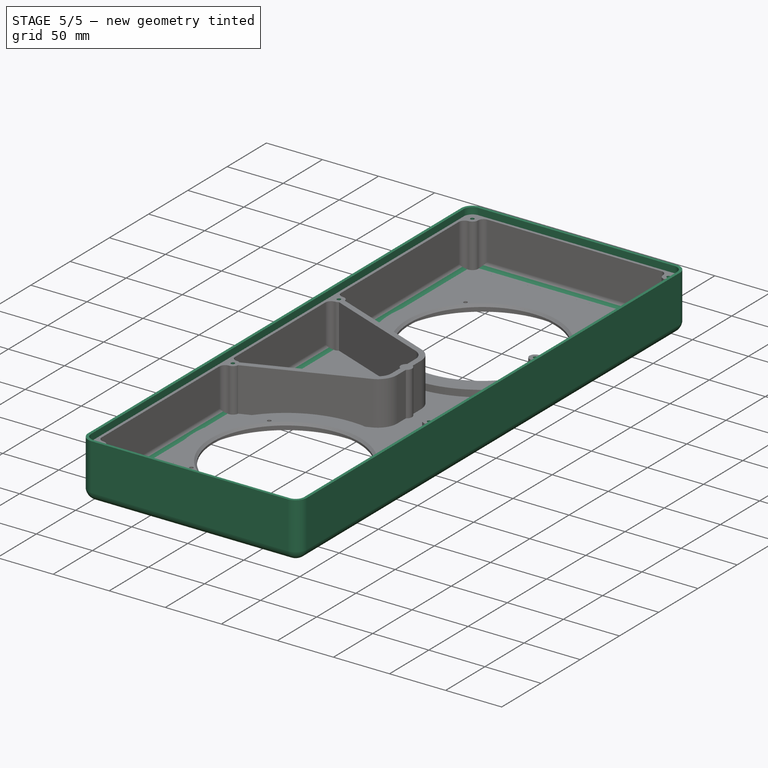
[diagram: stage 5 of 5 — iso view after this stage's code; geometry added in this stage tinted green]
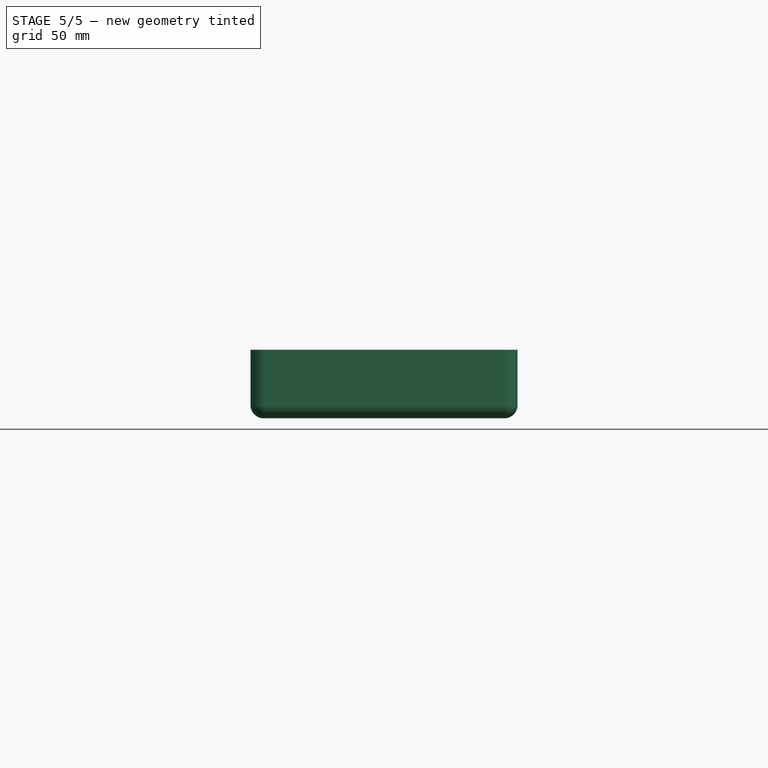
[diagram: stage 5 of 5 — front view after this stage's code; geometry added in this stage tinted green]
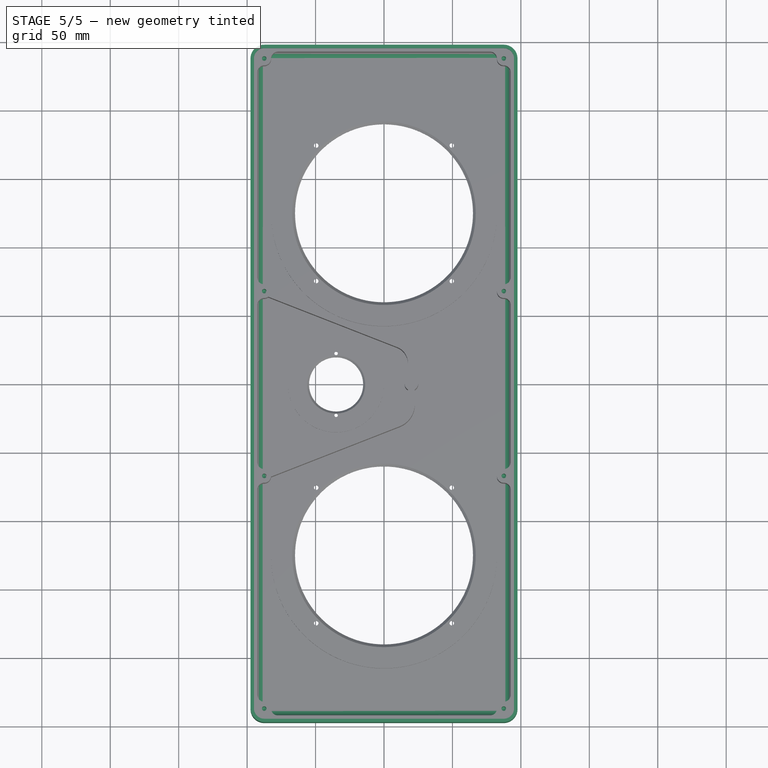
[diagram: stage 5 of 5 — top view after this stage's code; geometry added in this stage tinted green]
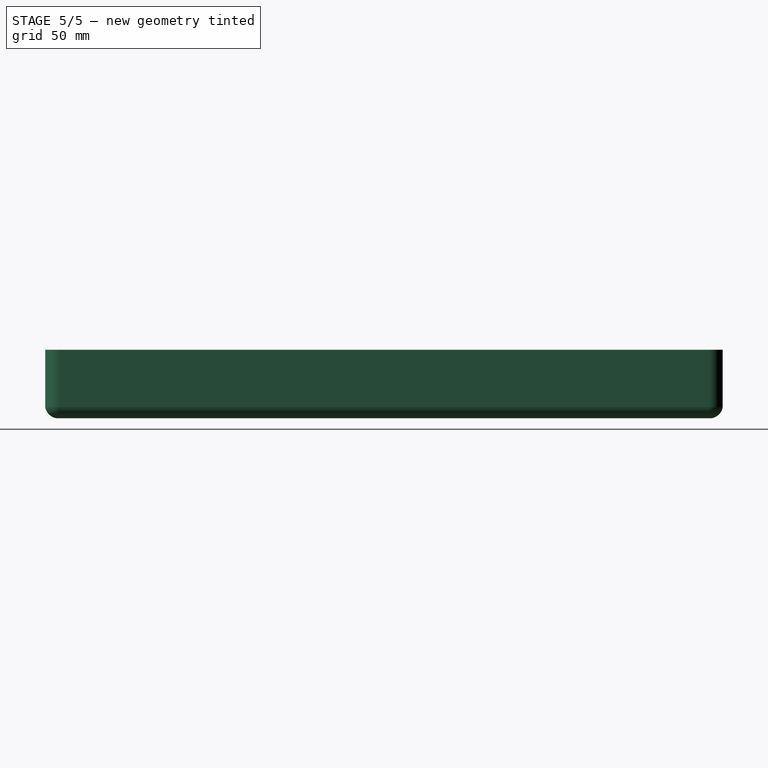
[diagram: stage 5 of 5 — right view after this stage's code; geometry added in this stage tinted green]
FEATURE [App::VarSet] VarSet001  label="v"
  backplate_height = 489.8
  backplate_rebate = 5.9
  backplate_thickness = 5
  backplate_width = 189.8
  bmr_chamfer_depth = 1.5
  bmr_chamfer_width = 6
  bmr_enc_base = 135
  bmr_enc_offset = 20
  bmr_enc_top = 50
  bmr_hole_dia = 39.5
  bmr_offset = 35
  bmr_plate_thickness = 3
  bmr_rebate_depth = 5.4
  bmr_rebate_dia = 54
  bmr_support_dia = 70
  bmr_support_thickness = 3
  ext_depth = 50
  ext_height = 495
  ext_roundover = 10
  ext_wall = 5
  ext_width = 195
  gasket_thickness = 0.9
  int_depth = 39.1
  rim_width = 2.5
  screw_inset = 10
  screw_post_diameter = 10
  woofer_chamfer_depth = 1
  woofer_chamfer_width = 8
  woofer_cutout_dia = 130
  woofer_offset = 125
  woofer_plate_thickness = 5.3
  woofer_rebate_depth = 7.2
  woofer_rebate_dia = 152.5
  woofer_support_dia = 165
  woofer_support_thickness = 6
  expr: backplate_height = ext_height - rim_width * 2 - 0.2 mm
  expr: backplate_rebate = ext_wall + gasket_thickness
  expr: backplate_width = ext_width - rim_width * 2 - 0.2 mm
  expr: bmr_rebate_depth = bmr_plate_thickness + bmr_chamfer_depth + gasket_thickness
  expr: int_depth = ext_depth - ext_wall - backplate_rebate
  expr: woofer_rebate_depth = woofer_plate_thickness + gasket_thickness + woofer_chamfer_depth
FEATURE [Sketcher::SketchObject] Sketch002  label="base geometry"
  ArcFitTolerance = 1e-06
  ExternalTypes = [0]
  FullyConstrained = true
  MakeInternals = false
  MapMode = 5
  _ExternalGeoVersion = 0
  expr: Constraints[3] = <<v>>.bmr_offset
  expr: Constraints[4] = <<v>>.woofer_offset
  expr: Constraints[5] = <<v>>.woofer_offset
  expr: Constraints[6] = <<v>>.ext_height / 2
  expr: Constraints[7] = <<v>>.ext_width / 2
  sketch-geometry (7):
    g0: GeomPoint [constr] X=-97.5 Y=247.5 Z=0
    g1: GeomPoint [constr] X=97.5 Y=247.5 Z=0
    g2: GeomPoint [constr] X=97.5 Y=-247.5 Z=0
    g3: GeomPoint [constr] X=-97.5 Y=-247.5 Z=0
    g4: GeomPoint [constr] X=-35 Y=0 Z=0
    g5: GeomPoint [constr] X=0 Y=125 Z=0
    g6: GeomPoint [constr] X=0 Y=-125 Z=0
  constraints (11):
    c: PointOnObject(g4,g-1)
    c: PointOnObject(g5,g-2)
    c: PointOnObject(g6,g-2)
    c: DistanceX(g4,g-1) = 35
    c: DistanceY(g-1,g5) = 125
    c: DistanceY(g6,g-1) = 125
    c: DistanceY(g-1,g1) = 247.5
    c: DistanceX(g-1,g1) = 97.5
    c: Symmetric(g0,g1,g-2)
    c: Symmetric(g1,g2,g-1)
    c: Symmetric(g3,g2,g-2)
FEATURE [Sketcher::SketchObject] Sketch  label="back panel screw hole geometry"
  ArcFitTolerance = 1e-06
  AttachmentSupport = -> [Sketch002]
  ExternalTypes = [0]
  FullyConstrained = true
  MakeInternals = false
  MapMode = 2
  _ExternalGeoVersion = 0
  expr: Constraints[11] = <<v>>.bmr_enc_offset
  expr: Constraints[1] = <<v>>.ext_height / 2 - <<v>>.screw_inset
  expr: Constraints[2] = <<v>>.ext_width / 2 - <<v>>.screw_inset
  expr: Constraints[8] = <<v>>.ext_width / 2 - <<v>>.screw_inset
  expr: Constraints[9] = <<v>>.bmr_enc_base
  sketch-geometry (9):
    g0: GeomPoint [constr] X=-87.5 Y=237.5 Z=0
    g1: GeomPoint [constr] X=87.5 Y=237.5 Z=0
    g2: GeomPoint [constr] X=87.5 Y=-237.5 Z=0
    g3: GeomPoint [constr] X=-87.5 Y=-237.5 Z=0
    g4: GeomPoint [constr] X=-87.5 Y=-67.5 Z=0
    g5: GeomPoint [constr] X=-87.5 Y=67.5 Z=0
    g6: GeomPoint [constr] X=87.5 Y=67.5 Z=0
    g7: GeomPoint [constr] X=87.5 Y=-67.5 Z=0
    g8: GeomPoint [constr] X=20 Y=0 Z=0
  constraints (12):
    c: PointOnObject(g8,g-1)
    c: DistanceY(g-1,g0) = 237.5
    c: DistanceX(g0,g-1) = 87.5
    c: Symmetric(g0,g1,g-2)
    c: Symmetric(g5,g6,g-2)
    c: Symmetric(g4,g7,g-2)
    c: Symmetric(g3,g2,g-2)
    c: Symmetric(g2,g1,g-1)
    c: DistanceX(g5,g-1) = 87.5
    c: DistanceY(g4,g5) = 135
    c: Symmetric(g5,g4,g-1)
    c: DistanceX(g-1,g8) = 20
FEATURE [Sketcher::SketchObject] Sketch003  label="main body outline"
  ArcFitTolerance = 1e-06
  AttachmentSupport = -> [Sketch002]
  ExternalTypes = [0]
  FullyConstrained = true
  MakeInternals = false
  MapMode = 2
  _ExternalGeoVersion = 0
  expr: Constraints[32] = <<v>>.ext_roundover
  expr: Constraints[3] = Sketch002.Constraints[3]
  expr: Constraints[4] = Sketch002.Constraints[4]
  expr: Constraints[5] = Sketch002.Constraints[5]
  expr: Constraints[6] = Sketch002.Constraints[6]
  expr: Constraints[7] = Sketch002.Constraints[7]
  sketch-geometry (17):
    g0: GeomPoint [constr] X=-97.5 Y=247.5 Z=0
    g1: GeomPoint [constr] X=97.5 Y=247.5 Z=0
    g2: GeomPoint [constr] X=97.5 Y=-247.5 Z=0
    g3: GeomPoint [constr] X=-97.5 Y=-247.5 Z=0
    g4: GeomPoint [constr] X=-35 Y=0 Z=0
    g5: GeomPoint [constr] X=0 Y=125 Z=0
    g6: GeomPoint [constr] X=0 Y=-125 Z=0
    g7: LineSegment StartX=-97.5 StartY=237.5 StartZ=0 EndX=-97.5 EndY=-237.5 EndZ=0
    g8: LineSegment StartX=-87.5 StartY=-247.5 StartZ=0 EndX=87.5 EndY=-247.5 EndZ=0
    g9: LineSegment StartX=97.5 StartY=-237.5 StartZ=0 EndX=97.5 EndY=237.5 EndZ=0
    g10: LineSegment StartX=87.5 StartY=247.5 StartZ=0 EndX=-87.5 EndY=247.5 EndZ=0
    g11: ArcOfCircle CenterX=-87.5 CenterY=237.5 CenterZ=0 NormalX=0 NormalY=0 NormalZ=1 AngleXU=0 Radius=10 StartAngle=1.5708 EndAngle=3.14159
    g12: ArcOfCircle CenterX=-87.5 CenterY=-237.5 CenterZ=0 NormalX=0 NormalY=0 NormalZ=1 AngleXU=0 Radius=10 StartAngle=3.14159 EndAngle=4.71239
    g13: ArcOfCircle CenterX=87.5 CenterY=-237.5 CenterZ=0 NormalX=0 NormalY=0 NormalZ=1 AngleXU=0 Radius=10 StartAngle=4.71239 EndAngle=6.28319
    g14: ArcOfCircle CenterX=87.5 CenterY=237.5 CenterZ=0 NormalX=0 NormalY=0 NormalZ=1 AngleXU=0 Radius=10 StartAngle=-3.2e-14 EndAngle=1.5708
    g15: GeomPoint [constr] X=-97.5 Y=247.5 Z=0
    g16: GeomPoint [constr] X=97.5 Y=-247.5 Z=0
  constraints (33):
    c: PointOnObject(g4,g-1)
    c: PointOnObject(g5,g-2)
    c: PointOnObject(g6,g-2)
    c: DistanceX(g4,g-1) = 35
    c: DistanceY(g-1,g5) = 125
    c: DistanceY(g6,g-1) = 125
    c: DistanceY(g-1,g1) = 247.5
    c: DistanceX(g-1,g1) = 97.5
    c: Symmetric(g0,g1,g-2)
    c: Symmetric(g1,g2,g-1)
    c: Symmetric(g3,g2,g-2)
    c: Tangent(g7,g11) = -1.5708
    c: Tangent(g7,g12) = -1.5708
    c: Tangent(g8,g12) = -1.5708
    c: Tangent(g8,g13) = -1.5708
    c: Tangent(g9,g13) = -1.5708
    c: Tangent(g9,g14) = -1.5708
    c: Tangent(g10,g14) = -1.5708
    c: Tangent(g10,g11) = -1.5708
    c: Vertical(g7)
    c: Vertical(g9)
    c: Horizontal(g8)
    c: Horizontal(g10)
    c: Equal(g11,g12)
    c: Equal(g12,g13)
    c: Equal(g13,g14)
    c: PointOnObject(g15,g7)
    c: PointOnObject(g15,g10)
    c: PointOnObject(g16,g8)
    c: PointOnObject(g16,g9)
    c: Coincident(g15,g0)
    c: Coincident(g16,g2)
    c: Radius(g11) = 10
FEATURE [Sketcher::SketchObject] Sketch021  label="shell profile"
  ArcFitTolerance = 1e-06
  AttachmentOffset = pos=(0,0,0) rot=(0,1,0;3.14159rad)
  AttachmentSupport = -> [Sketch003]
  ExternalTypes = [0]
  FullyConstrained = true
  MakeInternals = false
  MapMode = 7
  Placement = pos=(97.5,-237.5,0) rot=(0,0.707107,0.707107;3.14159rad)
  _ExternalGeoVersion = 1
  expr: Constraints[1] = <<v>>.ext_roundover
  expr: Constraints[20] = <<v>>.ext_depth
  expr: Constraints[21] = <<v>>.ext_wall
  expr: Constraints[22] = <<v>>.ext_wall
  expr: Constraints[23] = <<v>>.ext_roundover - <<v>>.ext_wall
  sketch-geometry (9):
    g0: ArcOfCircle CenterX=9.84808 CenterY=9.84808 CenterZ=0 NormalX=0 NormalY=0 NormalZ=1 AngleXU=0 Radius=10 StartAngle=3.31613 EndAngle=4.53786
    g1: LineSegment [constr] StartX=0 StartY=8.1116 StartZ=0 EndX=-3.52654 EndY=28.1116 EndZ=0
    g2: LineSegment StartX=0 StartY=8.1116 StartZ=0 EndX=0 EndY=50 EndZ=0
    g3: LineSegment StartX=0 StartY=50 StartZ=0 EndX=5 EndY=50 EndZ=0
    g4: LineSegment StartX=5 StartY=50 StartZ=0 EndX=5 EndY=10 EndZ=0
    g5: LineSegment StartX=8.1116 StartY=0 StartZ=0 EndX=12 EndY=0 EndZ=0
    g6: LineSegment StartX=12 StartY=0 StartZ=0 EndX=12 EndY=5 EndZ=0
    g7: LineSegment StartX=12 StartY=5 StartZ=0 EndX=10 EndY=5 EndZ=0
    g8: ArcOfCircle CenterX=10 CenterY=10 CenterZ=0 NormalX=0 NormalY=0 NormalZ=1 AngleXU=0 Radius=5 StartAngle=3.14159 EndAngle=4.71239
  constraints (26):
    c: PointOnObject(g0,g-2)
    c: Radius(g0) = 10
    c: PointOnObject(g0,g-1)
    c: Angle(g0) = 1.22173
    c: Tangent(g1,g0) = 1.5708
    c: Angle(g-2,g1) = 0.174533
    c: Coincident(g2,g0)
    c: PointOnObject(g2,g-2)
    c: Coincident(g3,g2)
    c: Horizontal(g3)
    c: Coincident(g4,g3)
    c: Vertical(g4)
    c: Coincident(g5,g0)
    c: PointOnObject(g5,g-1)
    c: Coincident(g6,g5)
    c: Vertical(g6)
    c: Coincident(g7,g6)
    c: Horizontal(g7)
    c: Tangent(g8,g4) = -1.5708
    c: Tangent(g8,g7) = 1.5708
    c: DistanceY(g0,g2) = 50
    c: DistanceX(g3,g3) = 5
    c: DistanceY(g6,g6) = 5
    c: Radius(g8) = 5
    c: DistanceX(g0,g5) = 12
    c: DistanceY(g1,g1) = 20
FEATURE [App::Point] Origin001
  Role = Origin
FEATURE [App::Point] Origin003
  Role = Origin
FEATURE [PartDesign::AdditivePipe] AdditivePipe
  AuxiliaryCurvilinear = true
  AuxiliarySpineTangent = false
  Binormal = (0,0,0)
  Mode = 0
  Profile = -> Sketch021
  Spine = -> Sketch003
  SpineTangent = false
  Suppressed = false
  Transformation = 0
  Transition = 0
FEATURE [Sketcher::SketchObject] Sketch015  label="interior baffle outline"
  ArcFitTolerance = 1e-06
  AttachmentOffset = pos=(0,0,5) rot=(0,0,1;0rad)
  AttachmentSupport = -> [Sketch]
  ExternalTypes = [0]
  FullyConstrained = true
  MakeInternals = false
  MapMode = 2
  Placement = pos=(0,0,5) rot=(0,0,1;0rad)
  _ExternalGeoVersion = 0
  expr: .AttachmentOffset.Base.z = <<v>>.ext_wall
  expr: Constraints[1] = Sketch.Constraints[8] - 2 mm
  expr: Constraints[2] = Sketch.Constraints[9] - 2 mm
  expr: Constraints[4] = Sketch.Constraints[11]
  sketch-geometry (20):
    g0: GeomPoint [constr] X=-85.5 Y=-66.5 Z=0
    g1: GeomPoint [constr] X=-85.5 Y=66.5 Z=0
    g2: GeomPoint [constr] X=20 Y=0 Z=0
    g3: LineSegment [constr] StartX=-85.5 StartY=66.5 StartZ=0 EndX=10.4634 EndY=28.9697 EndZ=0
    g4: LineSegment [constr] StartX=20 StartY=-15 StartZ=0 EndX=20 EndY=15 EndZ=0
    g5: LineSegment [constr] StartX=-85.5 StartY=-66.5 StartZ=0 EndX=10.4634 EndY=-28.9697 EndZ=0
    g6: ArcOfCircle [constr] CenterX=5 CenterY=15 CenterZ=0 NormalX=0 NormalY=0 NormalZ=1 AngleXU=0 Radius=15 StartAngle=0 EndAngle=1.19799
    g7: ArcOfCircle [constr] CenterX=5 CenterY=-15 CenterZ=0 NormalX=0 NormalY=0 NormalZ=1 AngleXU=0 Radius=15 StartAngle=5.08519 EndAngle=6.28319
    g8: LineSegment StartX=17.5 StartY=15 StartZ=0 EndX=17.5 EndY=-15 EndZ=0
    g9: LineSegment StartX=22.5 StartY=-15 StartZ=0 EndX=22.5 EndY=15 EndZ=0
    g10: LineSegment StartX=11.374 StartY=31.2979 StartZ=0 EndX=-84.5894 EndY=68.8283 EndZ=0
    g11: LineSegment StartX=-84.5894 StartY=68.8283 StartZ=0 EndX=-86.4106 EndY=64.1717 EndZ=0
    g12: LineSegment StartX=-86.4106 StartY=64.1717 StartZ=0 EndX=9.55283 EndY=26.6414 EndZ=0
    g13: LineSegment StartX=-86.4106 StartY=-64.1717 StartZ=0 EndX=9.55283 EndY=-26.6414 EndZ=0
    g14: LineSegment StartX=11.374 StartY=-31.2979 StartZ=0 EndX=-84.5894 EndY=-68.8283 EndZ=0
    g15: LineSegment StartX=-84.5894 StartY=-68.8283 StartZ=0 EndX=-86.4106 EndY=-64.1717 EndZ=0
    g16: ArcOfCircle CenterX=5 CenterY=-15 CenterZ=0 NormalX=0 NormalY=0 NormalZ=1 AngleXU=0 Radius=12.5 StartAngle=5.08519 EndAngle=6.28319
    g17: ArcOfCircle CenterX=5 CenterY=-15 CenterZ=0 NormalX=0 NormalY=0 NormalZ=1 AngleXU=0 Radius=17.5 StartAngle=5.08519 EndAngle=6.28319
    g18: ArcOfCircle CenterX=5 CenterY=15 CenterZ=0 NormalX=0 NormalY=0 NormalZ=1 AngleXU=0 Radius=12.5 StartAngle=-9e-16 EndAngle=1.19799
    g19: ArcOfCircle CenterX=5 CenterY=15 CenterZ=0 NormalX=0 NormalY=0 NormalZ=1 AngleXU=0 Radius=17.5 StartAngle=0 EndAngle=1.19799
  constraints (45):
    c: PointOnObject(g2,g-1)
    c: DistanceX(g1,g-1) = 85.5
    c: DistanceY(g0,g1) = 133
    c: Symmetric(g1,g0,g-1)
    c: DistanceX(g-1,g2) = 20
    c: Coincident(g5,g0)
    c: Symmetric(g4,g4,g-1)
    c: DistanceY(g4,g4) = 30
    c: Tangent(g7,g5) = -1.5708
    c: Tangent(g6,g3) = 1.5708
    c: Tangent(g6,g4) = -1.5708
    c: Tangent(g7,g4) = -1.5708
    c: Radius(g6) = 15
    c: Radius(g7) = 15
    c: PointOnObject(g2,g4)
    c: Coincident(g3,g1)
    c: Vertical(g9)
    c: Coincident(g15,g14)
    c: Coincident(g15,g13)
    c: Parallel(g12,g10)
    c: Parallel(g13,g14)
    c: Parallel(g10,g3)
    c: Parallel(g13,g5)
    c: Coincident(g10,g11)
    c: Coincident(g12,g11)
    c: Distance(g11,g11) = 5
    c: Symmetric(g10,g11,g3)
    c: Symmetric(g9,g8,g4)
    c: DistanceX(g8,g9) = 5
    c: DistanceY(g9,g9) = 30
    c: Symmetric(g8,g8,g-1)
    c: Distance(g15,g15) = 5
    c: Symmetric(g13,g14,g5)
    c: Equal(g5,g13)
    c: Equal(g5,g14)
    c: Equal(g3,g10)
    c: Equal(g3,g12)
    c: Coincident(g18,g8)
    c: Tangent(g16,g8) = 1.5708
    c: Tangent(g16,g13) = -1.5708
    c: Tangent(g17,g9) = -1.5708
    c: Tangent(g17,g14) = 1.5708
    c: Tangent(g18,g12) = 1.5708
    c: Tangent(g19,g10) = -1.5708
    c: Tangent(g19,g9) = -1.5708
FEATURE [Sketcher::SketchObject] Sketch014  label="rim pocket outline"
  ArcFitTolerance = 1e-06
  AttachmentOffset = pos=(0,0,50) rot=(0,0,1;0rad)
  AttachmentSupport = -> [Origin]
  ExternalTypes = [0]
  FullyConstrained = true
  MakeInternals = false
  MapMode = 5
  Placement = pos=(0,0,50) rot=(0,0,1;0rad)
  _ExternalGeoVersion = 0
  expr: .AttachmentOffset.Base.z = <<v>>.ext_depth
  expr: Constraints[17] = <<v>>.ext_roundover - <<v>>.rim_width
  expr: Constraints[18] = <<v>>.ext_width - <<v>>.rim_width * 2
  expr: Constraints[19] = <<v>>.ext_height - <<v>>.rim_width * 2
  sketch-geometry (10):
    g0: LineSegment StartX=-95 StartY=237.5 StartZ=0 EndX=-95 EndY=-237.5 EndZ=0
    g1: LineSegment StartX=-87.5 StartY=-245 StartZ=0 EndX=87.5 EndY=-245 EndZ=0
    g2: LineSegment StartX=95 StartY=-237.5 StartZ=0 EndX=95 EndY=237.5 EndZ=0
    g3: LineSegment StartX=87.5 StartY=245 StartZ=0 EndX=-87.5 EndY=245 EndZ=0
    g4: ArcOfCircle CenterX=-87.5 CenterY=237.5 CenterZ=0 NormalX=0 NormalY=0 NormalZ=1 AngleXU=0 Radius=7.5 StartAngle=1.5708 EndAngle=3.14159
    g5: ArcOfCircle CenterX=-87.5 CenterY=-237.5 CenterZ=0 NormalX=0 NormalY=0 NormalZ=1 AngleXU=0 Radius=7.5 StartAngle=3.14159 EndAngle=4.71239
    g6: ArcOfCircle CenterX=87.5 CenterY=-237.5 CenterZ=0 NormalX=0 NormalY=0 NormalZ=1 AngleXU=0 Radius=7.5 StartAngle=4.71239 EndAngle=6.28319
    g7: ArcOfCircle CenterX=87.5 CenterY=237.5 CenterZ=0 NormalX=0 NormalY=0 NormalZ=1 AngleXU=0 Radius=7.5 StartAngle=1.6e-15 EndAngle=1.5708
    g8: GeomPoint [constr] X=-95 Y=245 Z=0
    g9: GeomPoint [constr] X=95 Y=-245 Z=0
  constraints (22):
    c: Tangent(g0,g4) = -1.5708
    c: Tangent(g0,g5) = -1.5708
    c: Tangent(g1,g5) = -1.5708
    c: Tangent(g1,g6) = -1.5708
    c: Tangent(g2,g6) = -1.5708
    c: Tangent(g2,g7) = -1.5708
    c: Tangent(g3,g7) = -1.5708
    c: Tangent(g3,g4) = -1.5708
    c: Vertical(g0)
    c: Vertical(g2)
    c: Horizontal(g1)
    c: Equal(g5,g6)
    c: Equal(g6,g7)
    c: PointOnObject(g8,g0)
    c: PointOnObject(g8,g3)
    c: PointOnObject(g9,g1)
    c: PointOnObject(g9,g2)
    c: Radius(g4) = 7.5
    c: Distance(g2,g0) = 190
    c: Distance(g1,g3) = 490
    c: Symmetric(g3,g3,g-2)
    c: Symmetric(g3,g1,g-1)
FEATURE [PartDesign::Pocket] Pocket004  label="rim pocket"
  BaseFeature = -> AdditivePipe
  Direction = (0,0,-1)
  Length = 5.9
  Length2 = 5
  Profile = -> Sketch014
  ReferenceAxis = -> Sketch014 [N_Axis]
  SideType = 0
  Suppressed = false
  Type = 0
  Type2 = 0
  expr: Length = <<v>>.backplate_thickness + <<v>>.gasket_thickness
FEATURE [PartDesign::Hole] Hole002  label="post screw holes"
  BaseFeature = -> Pad001
  BaseProfileType = 7
  CustomThreadClearance = 0
  Depth = 25
  DepthType = 0
  Diameter = 3.3
  DrillForDepth = false
  DrillPoint = 1
  DrillPointAngle = 118
  HoleCutCountersinkAngle = 90
  HoleCutCustomValues = false
  HoleCutDepth = 0
  HoleCutDiameter = 0
  HoleCutType = 0
  ModelThread = false
  Placement = pos=(0,0,5) rot=(0,0,1;0rad)
  Profile = -> Sketch013
  Suppressed = false
  Tapered = false
  TaperedAngle = 90
  ThreadClass = 0
  ThreadDepth = 25
  ThreadDepthType = 0
  ThreadDiameter = 4
  ThreadDirection = 0
  ThreadFit = 0
  ThreadSize = 11
  ThreadType = 1
  Threaded = true
  UseCustomThreadClearance = false
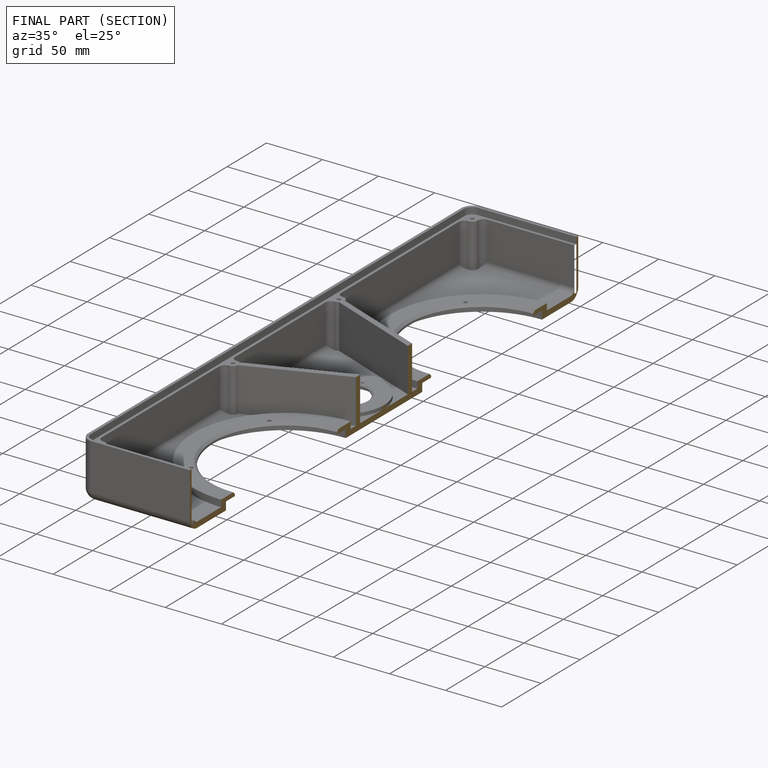
[diagram: finished part — half-section view (interior)]
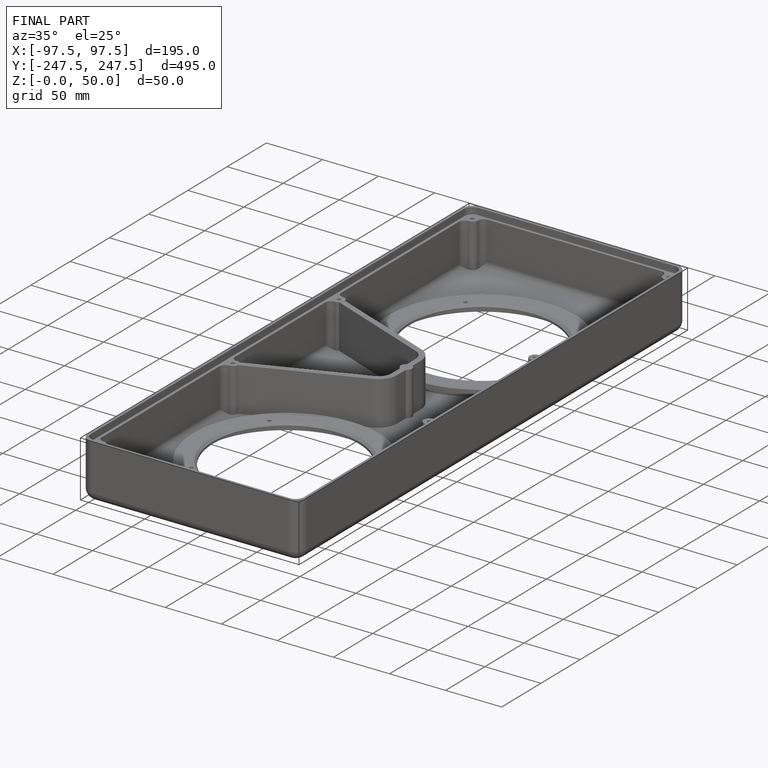
[diagram: finished part — iso view with bounding-box wireframe]
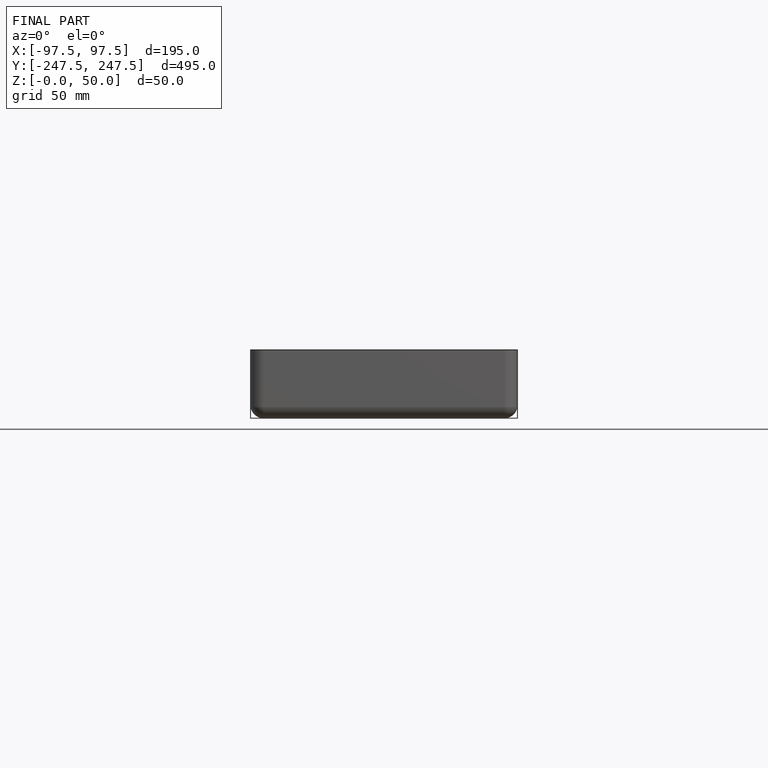
[diagram: finished part — front view with bounding-box wireframe]
